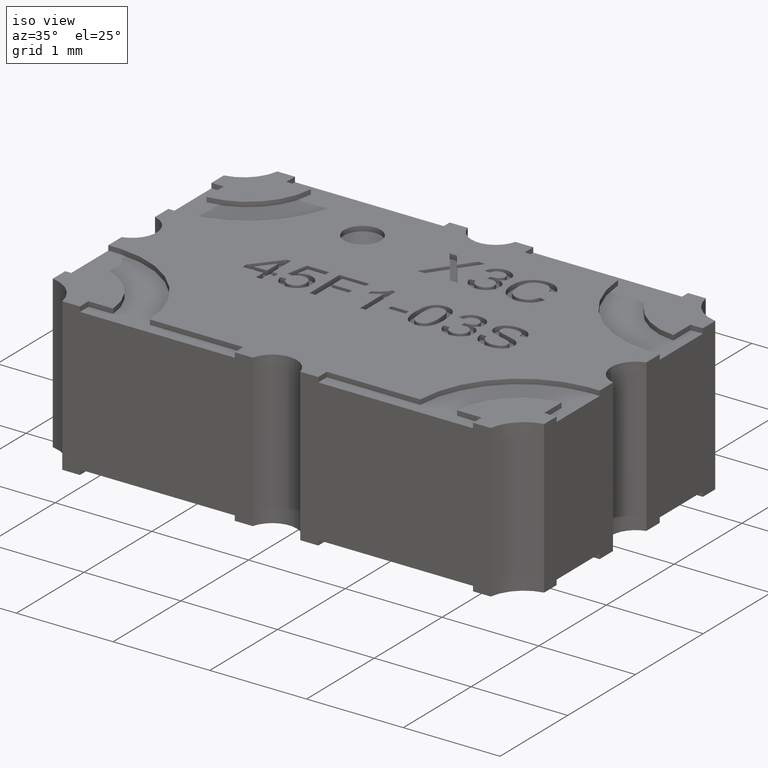
[diagram: clean part render]
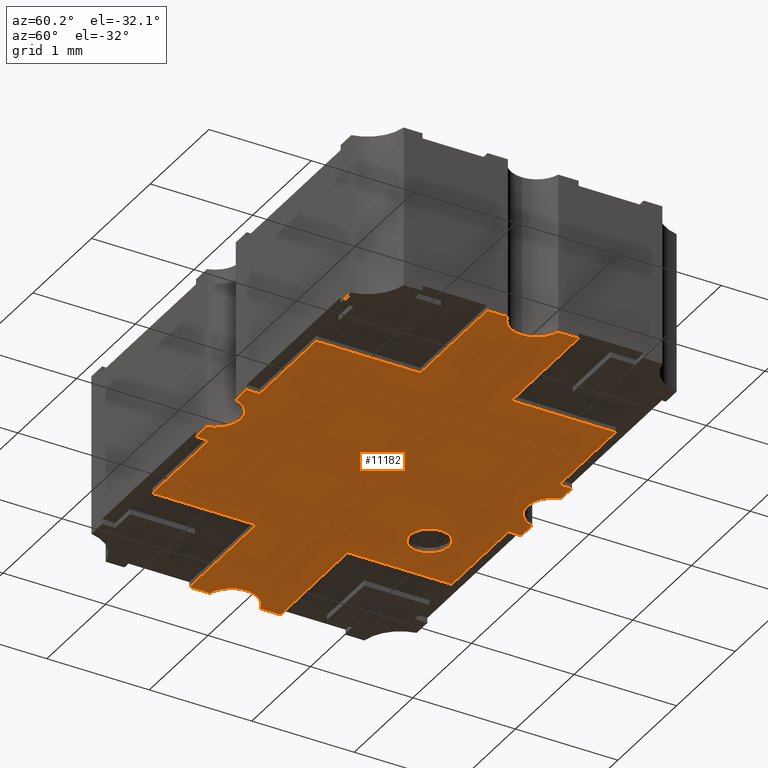
[diagram: tour spotlight — one face highlighted and labeled with its STEP entity id]
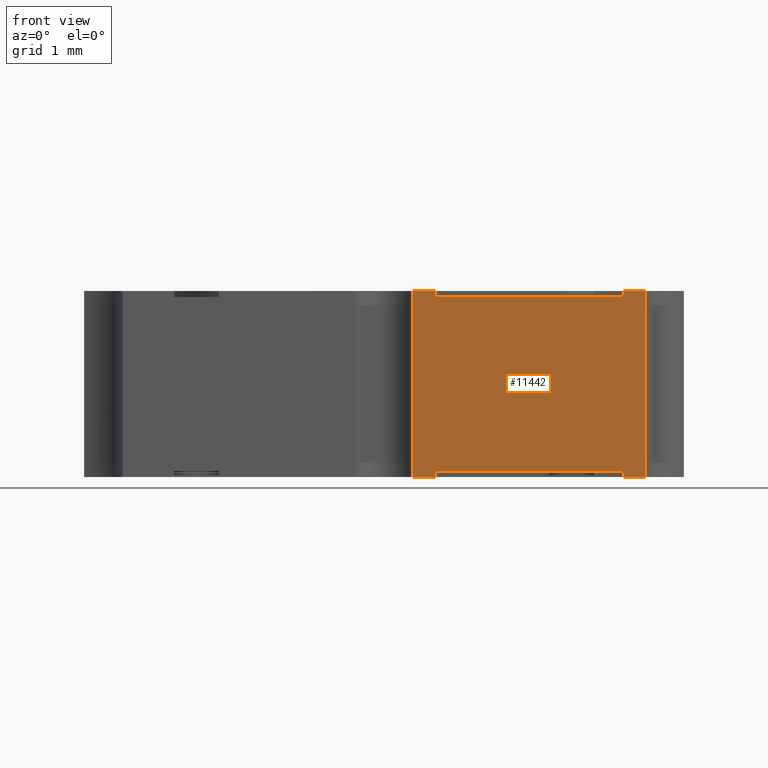
[diagram: tour spotlight — one face highlighted and labeled with its STEP entity id]
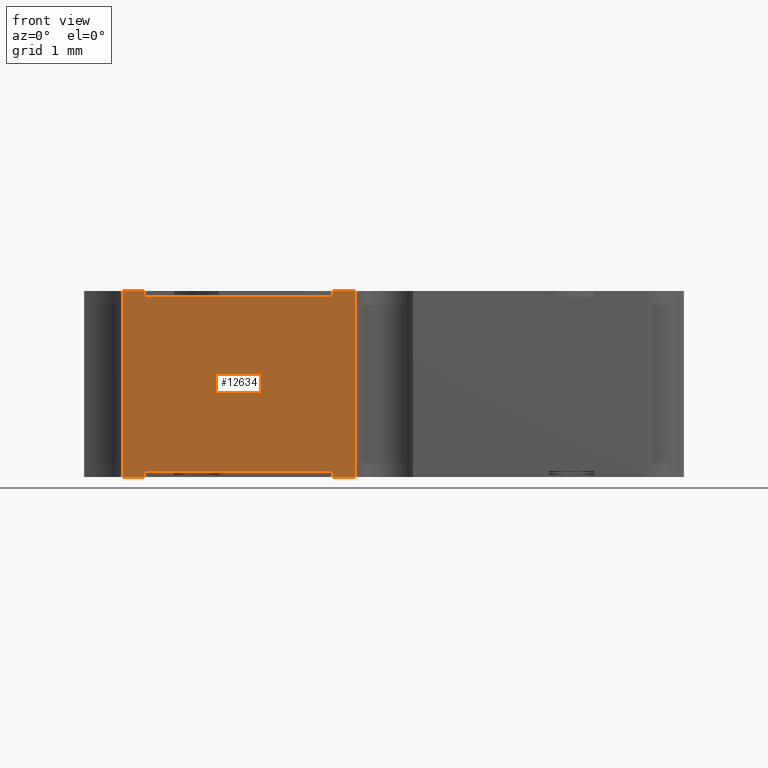
[diagram: tour spotlight — one face highlighted and labeled with its STEP entity id]
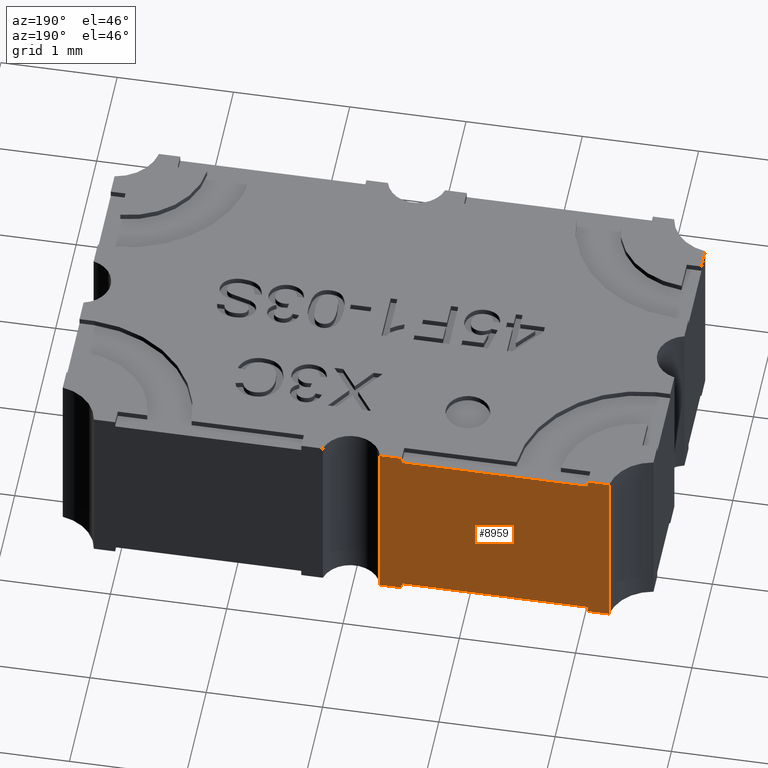
[diagram: tour spotlight — one face highlighted and labeled with its STEP entity id]
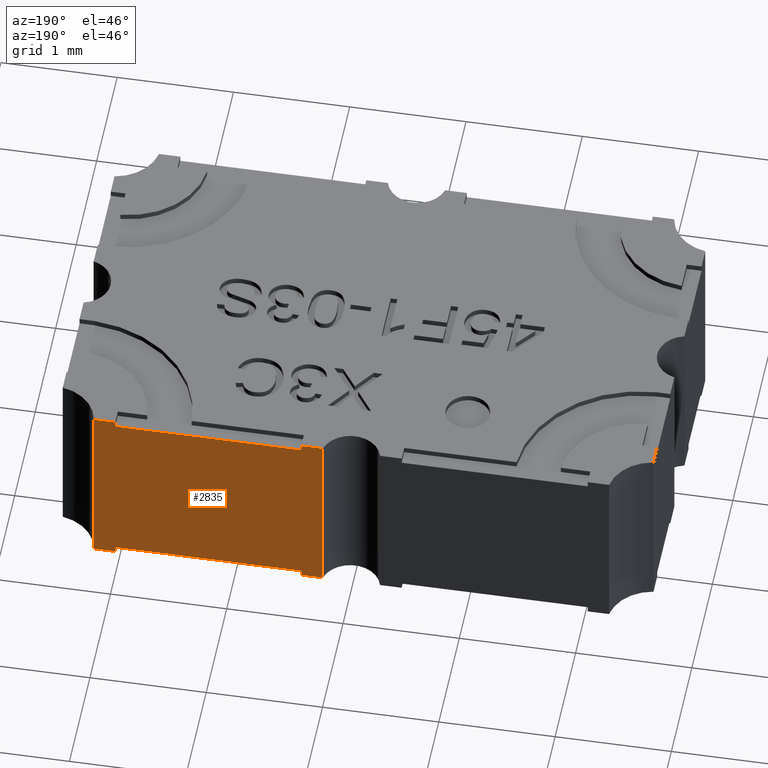
[diagram: tour spotlight — one face highlighted and labeled with its STEP entity id]
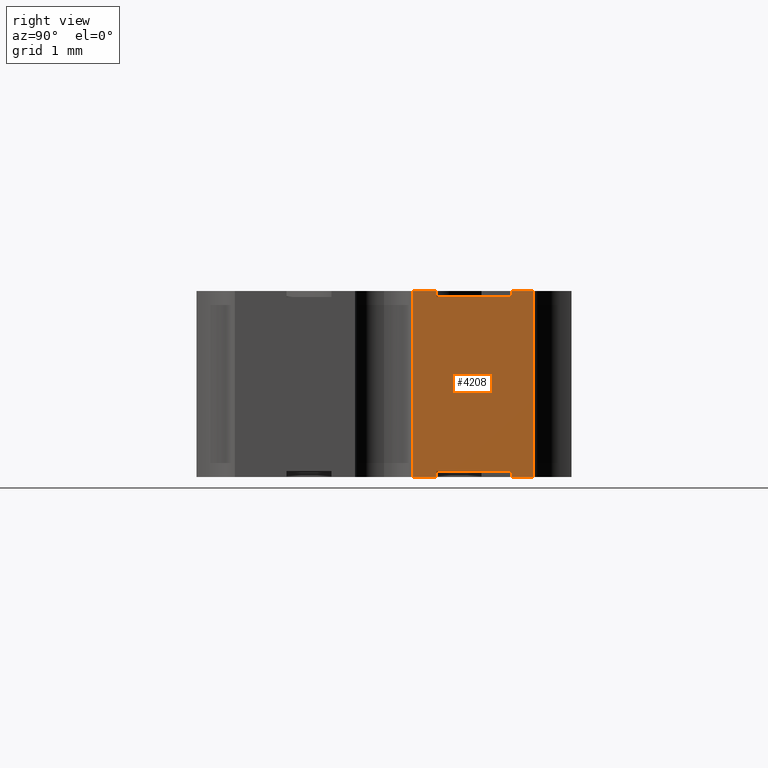
[diagram: tour spotlight — one face highlighted and labeled with its STEP entity id]
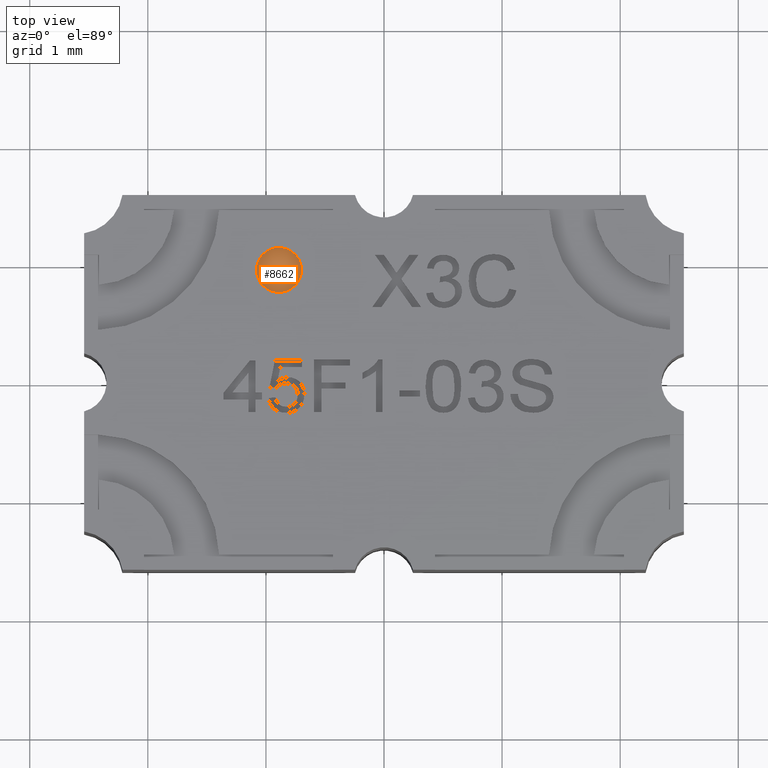
[diagram: tour spotlight — one face highlighted and labeled with its STEP entity id]
A machine part: a face-by-face anatomy tour. The part has 267 B-rep faces; the first image is the clean iso view, then the 7 largest visible faces are spotlighted one at a time (largest first), each with its STEP entity span.

Face 1 — auxiliary view, entity #11182. In plain terms, the highlighted planar face has unit normal (0, 0, 1).
Definition (entity closure, byte-faithful):
#34 = LINE ( 'NONE', #4030, #9963 ) ;
#44 = CARTESIAN_POINT ( 'NONE',  ( -0.01699999999997084399, -0.05750000000000450584, 0.000000000000000000 ) ) ;
#84 = AXIS2_PLACEMENT_3D ( 'NONE', #3704, #4808, #7570 ) ;
#94 = AXIS2_PLACEMENT_3D ( 'NONE', #7699, #5648, #10520 ) ;
#172 = VERTEX_POINT ( 'NONE', #3313 ) ;
#217 = AXIS2_PLACEMENT_3D ( 'NONE', #8984, #4342, #7047 ) ;
#372 = DIRECTION ( 'NONE',  ( 0.000000000000000000, 1.000000000000000000, 0.000000000000000000 ) ) ;
#386 = ORIENTED_EDGE ( 'NONE', *, *, #714, .T. ) ;
#416 = VECTOR ( 'NONE', #10494, 39.37007874015748143 ) ;
#435 = DIRECTION ( 'NONE',  ( 0.000000000000000000, -1.000000000000000000, 0.000000000000000000 ) ) ;
#446 = DIRECTION ( 'NONE',  ( -0.000000000000000000, -1.000000000000000000, -0.000000000000000000 ) ) ;
#502 = VECTOR ( 'NONE', #6310, 39.37007874015748143 ) ;
#519 = DIRECTION ( 'NONE',  ( -1.000000000000000000, 2.246585521108195157E-16, 0.000000000000000000 ) ) ;
#531 = ORIENTED_EDGE ( 'NONE', *, *, #11007, .T. ) ;
#551 = CARTESIAN_POINT ( 'NONE',  ( -0.01699999999997084399, 0.06250000000006371292, 0.000000000000000000 ) ) ;
#698 = LINE ( 'NONE', #4619, #12306 ) ;
#714 = EDGE_CURVE ( 'NONE', #10146, #1667, #3614, .T. ) ;
#824 = ORIENTED_EDGE ( 'NONE', *, *, #4432, .F. ) ;
#923 = CARTESIAN_POINT ( 'NONE',  ( -0.05500000000003860134, 0.05750000000007053635, 0.000000000000000000 ) ) ;
#951 = EDGE_CURVE ( 'NONE', #5000, #8416, #2321, .T. ) ;
#969 = ORIENTED_EDGE ( 'NONE', *, *, #1070, .T. ) ;
#1052 = CIRCLE ( 'NONE', #217, 0.007500000000000001457 ) ;
#1070 = EDGE_CURVE ( 'NONE', #5456, #11655, #698, .T. ) ;
#1113 = LINE ( 'NONE', #923, #7873 ) ;
#1159 = ORIENTED_EDGE ( 'NONE', *, *, #9877, .F. ) ;
#1169 = DIRECTION ( 'NONE',  ( 1.000000000000000000, 0.000000000000000000, 0.000000000000000000 ) ) ;
#1338 = CIRCLE ( 'NONE', #11609, 0.009999999999999995004 ) ;
#1360 = CARTESIAN_POINT ( 'NONE',  ( 0.05499999999997504108, 0.05750000000000460298, 0.000000000000000000 ) ) ;
#1413 = EDGE_CURVE ( 'NONE', #1579, #7974, #1918, .T. ) ;
#1438 = ORIENTED_EDGE ( 'NONE', *, *, #9214, .F. ) ;
#1454 = AXIS2_PLACEMENT_3D ( 'NONE', #6163, #6295, #5199 ) ;
#1464 = DIRECTION ( 'NONE',  ( 1.000000000000000000, 0.000000000000000000, 0.000000000000000000 ) ) ;
#1481 = ORIENTED_EDGE ( 'NONE', *, *, #8441, .T. ) ;
#1579 = VERTEX_POINT ( 'NONE', #12012 ) ;
#1600 = CARTESIAN_POINT ( 'NONE',  ( 0.05499999999997504108, 0.01749999999999832245, 0.000000000000000000 ) ) ;
#1602 = CARTESIAN_POINT ( 'NONE',  ( 0.05499999999997504108, -0.01749999999999826694, 0.000000000000000000 ) ) ;
#1667 = VERTEX_POINT ( 'NONE', #551 ) ;
#1732 = VERTEX_POINT ( 'NONE', #10785 ) ;
#1733 = DIRECTION ( 'NONE',  ( 0.000000000000000000, -1.000000000000000000, 0.000000000000000000 ) ) ;
#1820 = CARTESIAN_POINT ( 'NONE',  ( -0.08720294145923923601, 0.06249999999999771710, 0.000000000000000000 ) ) ;
#1918 = LINE ( 'NONE', #12598, #9918 ) ;
#1986 = ORIENTED_EDGE ( 'NONE', *, *, #3133, .F. ) ;
#2080 = LINE ( 'NONE', #7097, #6725 ) ;
#2102 = DIRECTION ( 'NONE',  ( -1.000000000000000000, 0.000000000000000000, 0.000000000000000000 ) ) ;
#2108 = ORIENTED_EDGE ( 'NONE', *, *, #951, .F. ) ;
#2204 = VECTOR ( 'NONE', #11058, 39.37007874015748143 ) ;
#2311 = CARTESIAN_POINT ( 'NONE',  ( -0.009682458365489837737, -0.06249999999999771710, 0.000000000000000000 ) ) ;
#2321 = LINE ( 'NONE', #11003, #3895 ) ;
#2360 = VECTOR ( 'NONE', #372, 39.37007874015748143 ) ;
#2456 = ORIENTED_EDGE ( 'NONE', *, *, #10420, .T. ) ;
#2489 = CARTESIAN_POINT ( 'NONE',  ( -0.09999999999999176215, -0.009682458365518535268, 0.000000000000000000 ) ) ;
#2565 = CARTESIAN_POINT ( 'NONE',  ( 0.05499999999997504108, 0.01749999999999832245, 0.000000000000000000 ) ) ;
#2617 = VECTOR ( 'NONE', #519, 39.37007874015748143 ) ;
#2646 = VERTEX_POINT ( 'NONE', #11545 ) ;
#2653 = CARTESIAN_POINT ( 'NONE',  ( -0.01699999999997084399, 0.05750000000007053635, 0.000000000000000000 ) ) ;
#2750 = DIRECTION ( 'NONE',  ( -1.000000000000000000, 0.000000000000000000, 0.000000000000000000 ) ) ;
#2774 = VECTOR ( 'NONE', #2811, 39.37007874015748143 ) ;
#2790 = EDGE_CURVE ( 'NONE', #9244, #7974, #2080, .T. ) ;
#2811 = DIRECTION ( 'NONE',  ( 0.000000000000000000, 1.000000000000000000, 0.000000000000000000 ) ) ;
#2969 = CARTESIAN_POINT ( 'NONE',  ( 0.09999999999999228950, 0.01749999999999832245, 0.000000000000000000 ) ) ;
#3032 = CIRCLE ( 'NONE', #12479, 0.009999999999999995004 ) ;
#3035 = CARTESIAN_POINT ( 'NONE',  ( -0.02750000000003541625, 0.03750000000000142109, 0.000000000000000000 ) ) ;
#3133 = EDGE_CURVE ( 'NONE', #5952, #9900, #10085, .T. ) ;
#3243 = ORIENTED_EDGE ( 'NONE', *, *, #9330, .T. ) ;
#3260 = CARTESIAN_POINT ( 'NONE',  ( -0.09999999999999176215, -0.04970294145924517709, 0.000000000000000000 ) ) ;
#3267 = ORIENTED_EDGE ( 'NONE', *, *, #11543, .F. ) ;
#3288 = EDGE_CURVE ( 'NONE', #8941, #9769, #9568, .T. ) ;
#3313 = CARTESIAN_POINT ( 'NONE',  ( -0.09999999999999178990, 0.009682458365518537002, 0.000000000000000000 ) ) ;
#3373 = CARTESIAN_POINT ( 'NONE',  ( -0.09999999999999190092, 0.01750000000006426970, 0.000000000000000000 ) ) ;
#3465 = ORIENTED_EDGE ( 'NONE', *, *, #5338, .T. ) ;
#3614 = LINE ( 'NONE', #2653, #416 ) ;
#3655 = VERTEX_POINT ( 'NONE', #9868 ) ;
#3704 = CARTESIAN_POINT ( 'NONE',  ( 2.868440393347476636E-14, 0.06499999999999771239, 0.000000000000000000 ) ) ;
#3708 = CARTESIAN_POINT ( 'NONE',  ( -0.05500000000003860134, -0.01749999999999825306, 0.000000000000000000 ) ) ;
#3777 = VERTEX_POINT ( 'NONE', #7112 ) ;
#3857 = CARTESIAN_POINT ( 'NONE',  ( -0.01699999999997084399, -0.06249999999999768241, 0.000000000000000000 ) ) ;
#3895 = VECTOR ( 'NONE', #6188, 39.37007874015748143 ) ;
#4030 = CARTESIAN_POINT ( 'NONE',  ( -0.05500000000003860134, -0.05750000000000450584, 0.000000000000000000 ) ) ;
#4065 = EDGE_CURVE ( 'NONE', #2646, #7910, #9673, .T. ) ;
#4106 = EDGE_CURVE ( 'NONE', #3655, #7837, #6117, .T. ) ;
#4125 = VECTOR ( 'NONE', #6232, 39.37007874015748143 ) ;
#4342 = DIRECTION ( 'NONE',  ( 0.000000000000000000, 0.000000000000000000, 1.000000000000000000 ) ) ;
#4354 = CARTESIAN_POINT ( 'NONE',  ( 0.009682458365547208512, 0.06249999999999771710, 0.000000000000000000 ) ) ;
#4356 = CARTESIAN_POINT ( 'NONE',  ( 0.01700000000002097056, -0.05750000000000450584, 0.000000000000000000 ) ) ;
#4364 = LINE ( 'NONE', #2311, #2204 ) ;
#4366 = EDGE_CURVE ( 'NONE', #11562, #1579, #12544, .T. ) ;
#4376 = CARTESIAN_POINT ( 'NONE',  ( 0.01700000000002097056, -0.06249999999999767547, 0.000000000000000000 ) ) ;
#4388 = EDGE_CURVE ( 'NONE', #12087, #3777, #9957, .T. ) ;
#4432 = EDGE_CURVE ( 'NONE', #4559, #9769, #10922, .T. ) ;
#4447 = ORIENTED_EDGE ( 'NONE', *, *, #2790, .T. ) ;
#4559 = VERTEX_POINT ( 'NONE', #2489 ) ;
#4587 = VECTOR ( 'NONE', #10559, 39.37007874015748143 ) ;
#4599 = VECTOR ( 'NONE', #8452, 39.37007874015748143 ) ;
#4619 = CARTESIAN_POINT ( 'NONE',  ( -0.09999999999999190092, 0.01750000000006426970, 0.000000000000000000 ) ) ;
#4652 = VECTOR ( 'NONE', #8036, 39.37007874015748143 ) ;
#4808 = DIRECTION ( 'NONE',  ( -0.000000000000000000, -0.000000000000000000, -1.000000000000000000 ) ) ;
#4873 = ORIENTED_EDGE ( 'NONE', *, *, #8564, .F. ) ;
#5000 = VERTEX_POINT ( 'NONE', #8821 ) ;
#5199 = DIRECTION ( 'NONE',  ( 1.000000000000000000, 0.000000000000000000, 0.000000000000000000 ) ) ;
#5202 = LINE ( 'NONE', #12206, #6182 ) ;
#5209 = CARTESIAN_POINT ( 'NONE',  ( -0.009682458365489837737, -0.06249999999999771710, 0.000000000000000000 ) ) ;
#5338 = EDGE_CURVE ( 'NONE', #6712, #1732, #1052, .T. ) ;
#5410 = CARTESIAN_POINT ( 'NONE',  ( 0.05499999999997504108, -0.05750000000000451972, 0.000000000000000000 ) ) ;
#5434 = VECTOR ( 'NONE', #446, 39.37007874015748143 ) ;
#5456 = VERTEX_POINT ( 'NONE', #3373 ) ;
#5469 = ORIENTED_EDGE ( 'NONE', *, *, #8962, .F. ) ;
#5648 = DIRECTION ( 'NONE',  ( 0.000000000000000000, 0.000000000000000000, 1.000000000000000000 ) ) ;
#5722 = EDGE_CURVE ( 'NONE', #12515, #7649, #6324, .T. ) ;
#5753 = CARTESIAN_POINT ( 'NONE',  ( 0.05499999999997504108, -0.05750000000000451972, 0.000000000000000000 ) ) ;
#5859 = VERTEX_POINT ( 'NONE', #12556 ) ;
#5876 = DIRECTION ( 'NONE',  ( 1.000000000000000000, 0.000000000000000000, -0.000000000000000000 ) ) ;
#5892 = EDGE_CURVE ( 'NONE', #5000, #12087, #5202, .T. ) ;
#5939 = DIRECTION ( 'NONE',  ( 0.000000000000000000, -1.000000000000000000, 0.000000000000000000 ) ) ;
#5952 = VERTEX_POINT ( 'NONE', #8100 ) ;
#6052 = CARTESIAN_POINT ( 'NONE',  ( 0.1024999999999923056, -1.280553747030123384E-17, 0.000000000000000000 ) ) ;
#6079 = DIRECTION ( 'NONE',  ( 1.000000000000000000, 0.000000000000000000, 0.000000000000000000 ) ) ;
#6117 = LINE ( 'NONE', #1602, #8849 ) ;
#6163 = CARTESIAN_POINT ( 'NONE',  ( 2.868653818971981125E-14, -0.06499999999999772626, 0.000000000000000000 ) ) ;
#6170 = VERTEX_POINT ( 'NONE', #11228 ) ;
#6182 = VECTOR ( 'NONE', #435, 39.37007874015748143 ) ;
#6188 = DIRECTION ( 'NONE',  ( -1.000000000000000000, -0.000000000000000000, -0.000000000000000000 ) ) ;
#6209 = CARTESIAN_POINT ( 'NONE',  ( -0.1024999999999917921, -4.408500743263292825E-18, 0.000000000000000000 ) ) ;
#6232 = DIRECTION ( 'NONE',  ( 1.000000000000000000, 0.000000000000000000, 0.000000000000000000 ) ) ;
#6295 = DIRECTION ( 'NONE',  ( -0.000000000000000000, -0.000000000000000000, -1.000000000000000000 ) ) ;
#6310 = DIRECTION ( 'NONE',  ( 0.000000000000000000, -1.000000000000000000, 0.000000000000000000 ) ) ;
#6324 = LINE ( 'NONE', #8252, #10484 ) ;
#6414 = LINE ( 'NONE', #11111, #2360 ) ;
#6454 = CARTESIAN_POINT ( 'NONE',  ( 0.09999999999999228950, 0.04970294145924517015, 0.000000000000000000 ) ) ;
#6610 = VERTEX_POINT ( 'NONE', #2969 ) ;
#6644 = LINE ( 'NONE', #1820, #4587 ) ;
#6712 = VERTEX_POINT ( 'NONE', #3035 ) ;
#6725 = VECTOR ( 'NONE', #5939, 39.37007874015748143 ) ;
#6738 = CARTESIAN_POINT ( 'NONE',  ( -0.01699999999997084399, -0.06249999999999768241, 0.000000000000000000 ) ) ;
#6929 = LINE ( 'NONE', #10797, #11154 ) ;
#6948 = VERTEX_POINT ( 'NONE', #3857 ) ;
#7001 = DIRECTION ( 'NONE',  ( -0.000000000000000000, -1.000000000000000000, -0.000000000000000000 ) ) ;
#7047 = DIRECTION ( 'NONE',  ( 1.000000000000000000, 0.000000000000000000, 0.000000000000000000 ) ) ;
#7097 = CARTESIAN_POINT ( 'NONE',  ( 0.01700000000002097056, -0.05750000000000450584, 0.000000000000000000 ) ) ;
#7105 = DIRECTION ( 'NONE',  ( -0.000000000000000000, -0.000000000000000000, -1.000000000000000000 ) ) ;
#7112 = CARTESIAN_POINT ( 'NONE',  ( 0.05499999999997504108, 0.05750000000000460298, 0.000000000000000000 ) ) ;
#7268 = CARTESIAN_POINT ( 'NONE',  ( -0.05500000000003860134, -0.01749999999999825306, 0.000000000000000000 ) ) ;
#7320 = ORIENTED_EDGE ( 'NONE', *, *, #11388, .T. ) ;
#7330 = CARTESIAN_POINT ( 'NONE',  ( -0.09999999999999178990, 0.009682458365518537002, 0.000000000000000000 ) ) ;
#7366 = DIRECTION ( 'NONE',  ( 0.000000000000000000, 0.000000000000000000, 1.000000000000000000 ) ) ;
#7426 = FACE_BOUND ( 'NONE', #12303, .T. ) ;
#7447 = LINE ( 'NONE', #2565, #12272 ) ;
#7476 = LINE ( 'NONE', #6454, #4599 ) ;
#7570 = DIRECTION ( 'NONE',  ( 1.000000000000000000, 0.000000000000000000, 0.000000000000000000 ) ) ;
#7649 = VERTEX_POINT ( 'NONE', #12363 ) ;
#7666 = EDGE_CURVE ( 'NONE', #7910, #6610, #7476, .T. ) ;
#7699 = CARTESIAN_POINT ( 'NONE',  ( -0.03500000000003541945, 0.03750000000000142109, 0.000000000000000000 ) ) ;
#7835 = DIRECTION ( 'NONE',  ( 1.000000000000000000, -0.000000000000000000, -0.000000000000000000 ) ) ;
#7837 = VERTEX_POINT ( 'NONE', #5753 ) ;
#7842 = EDGE_LOOP ( 'NONE', ( #969, #1481, #531, #386, #1159, #4873, #2108, #10838, #11989, #9514, #9751, #12695, #9888, #1438, #1986, #2456, #7880, #7320, #4447, #12238, #7971, #3267, #3243, #10214, #12723, #11298, #824, #11868, #5469 ) ) ;
#7873 = VECTOR ( 'NONE', #10760, 39.37007874015748143 ) ;
#7880 = ORIENTED_EDGE ( 'NONE', *, *, #4106, .T. ) ;
#7910 = VERTEX_POINT ( 'NONE', #12037 ) ;
#7971 = ORIENTED_EDGE ( 'NONE', *, *, #4366, .F. ) ;
#7974 = VERTEX_POINT ( 'NONE', #4376 ) ;
#8036 = DIRECTION ( 'NONE',  ( -0.000000000000000000, 1.000000000000000000, -0.000000000000000000 ) ) ;
#8066 = CARTESIAN_POINT ( 'NONE',  ( -0.09999999999999167888, -0.01749999999999825306, 0.000000000000000000 ) ) ;
#8100 = CARTESIAN_POINT ( 'NONE',  ( 0.09999999999999228950, -0.01749999999999826694, 0.000000000000000000 ) ) ;
#8252 = CARTESIAN_POINT ( 'NONE',  ( -0.01699999999997084399, -0.05750000000000450584, 0.000000000000000000 ) ) ;
#8288 = VERTEX_POINT ( 'NONE', #1600 ) ;
#8311 = LINE ( 'NONE', #5410, #2617 ) ;
#8325 = CIRCLE ( 'NONE', #94, 0.007500000000000001457 ) ;
#8416 = VERTEX_POINT ( 'NONE', #4354 ) ;
#8417 = CARTESIAN_POINT ( 'NONE',  ( -0.01699999999997084399, 0.05750000000007053635, 0.000000000000000000 ) ) ;
#8441 = EDGE_CURVE ( 'NONE', #11655, #5859, #6414, .T. ) ;
#8452 = DIRECTION ( 'NONE',  ( -0.000000000000000000, 1.000000000000000000, -0.000000000000000000 ) ) ;
#8564 = EDGE_CURVE ( 'NONE', #8416, #6170, #12212, .T. ) ;
#8768 = VECTOR ( 'NONE', #2750, 39.37007874015748143 ) ;
#8821 = CARTESIAN_POINT ( 'NONE',  ( 0.01700000000002097056, 0.06249999999999777955, 0.000000000000000000 ) ) ;
#8849 = VECTOR ( 'NONE', #1733, 39.37007874015748143 ) ;
#8900 = EDGE_CURVE ( 'NONE', #3777, #8288, #9390, .T. ) ;
#8941 = VERTEX_POINT ( 'NONE', #7268 ) ;
#8962 = EDGE_CURVE ( 'NONE', #5456, #172, #10161, .T. ) ;
#8984 = CARTESIAN_POINT ( 'NONE',  ( -0.03500000000003541945, 0.03750000000000142109, 0.000000000000000000 ) ) ;
#9214 = EDGE_CURVE ( 'NONE', #9900, #2646, #1338, .T. ) ;
#9217 = DIRECTION ( 'NONE',  ( -1.000000000000000000, 0.000000000000000000, 0.000000000000000000 ) ) ;
#9244 = VERTEX_POINT ( 'NONE', #4356 ) ;
#9319 = AXIS2_PLACEMENT_3D ( 'NONE', #12253, #7366, #5876 ) ;
#9323 = EDGE_CURVE ( 'NONE', #1732, #6712, #8325, .T. ) ;
#9330 = EDGE_CURVE ( 'NONE', #6948, #12515, #12455, .T. ) ;
#9390 = LINE ( 'NONE', #1360, #502 ) ;
#9407 = CARTESIAN_POINT ( 'NONE',  ( 0.09999999999999228950, -0.009682458365518550880, 0.000000000000000000 ) ) ;
#9434 = EDGE_CURVE ( 'NONE', #7649, #8941, #34, .T. ) ;
#9444 = CARTESIAN_POINT ( 'NONE',  ( -0.05500000000003860134, 0.01750000000006426970, 0.000000000000000000 ) ) ;
#9462 = VECTOR ( 'NONE', #7001, 39.37007874015748143 ) ;
#9506 = DIRECTION ( 'NONE',  ( 1.000000000000000000, 0.000000000000000000, 0.000000000000000000 ) ) ;
#9514 = ORIENTED_EDGE ( 'NONE', *, *, #8900, .T. ) ;
#9568 = LINE ( 'NONE', #3708, #8768 ) ;
#9673 = CIRCLE ( 'NONE', #11104, 0.009999999999999995004 ) ;
#9751 = ORIENTED_EDGE ( 'NONE', *, *, #12443, .T. ) ;
#9758 = DIRECTION ( 'NONE',  ( 0.000000000000000000, 1.000000000000000000, 0.000000000000000000 ) ) ;
#9769 = VERTEX_POINT ( 'NONE', #8066 ) ;
#9811 = CARTESIAN_POINT ( 'NONE',  ( 0.01700000000002097056, 0.05750000000000460298, 0.000000000000000000 ) ) ;
#9868 = CARTESIAN_POINT ( 'NONE',  ( 0.05499999999997504108, -0.01749999999999826694, 0.000000000000000000 ) ) ;
#9877 = EDGE_CURVE ( 'NONE', #6170, #1667, #6644, .T. ) ;
#9888 = ORIENTED_EDGE ( 'NONE', *, *, #4065, .F. ) ;
#9900 = VERTEX_POINT ( 'NONE', #9407 ) ;
#9918 = VECTOR ( 'NONE', #7835, 39.37007874015748143 ) ;
#9957 = LINE ( 'NONE', #11887, #4125 ) ;
#9963 = VECTOR ( 'NONE', #9758, 39.37007874015748143 ) ;
#9974 = DIRECTION ( 'NONE',  ( -0.000000000000000000, -0.000000000000000000, -1.000000000000000000 ) ) ;
#10043 = DIRECTION ( 'NONE',  ( 1.000000000000000000, 0.000000000000000000, 0.000000000000000000 ) ) ;
#10085 = LINE ( 'NONE', #12084, #4652 ) ;
#10146 = VERTEX_POINT ( 'NONE', #8417 ) ;
#10161 = LINE ( 'NONE', #7330, #5434 ) ;
#10214 = ORIENTED_EDGE ( 'NONE', *, *, #5722, .T. ) ;
#10270 = CARTESIAN_POINT ( 'NONE',  ( 0.1024999999999923056, -1.280553747030123384E-17, 0.000000000000000000 ) ) ;
#10397 = DIRECTION ( 'NONE',  ( -0.000000000000000000, -0.000000000000000000, -1.000000000000000000 ) ) ;
#10420 = EDGE_CURVE ( 'NONE', #5952, #3655, #6929, .T. ) ;
#10484 = VECTOR ( 'NONE', #9217, 39.37007874015748143 ) ;
#10494 = DIRECTION ( 'NONE',  ( 0.000000000000000000, 1.000000000000000000, 0.000000000000000000 ) ) ;
#10520 = DIRECTION ( 'NONE',  ( 1.000000000000000000, 0.000000000000000000, 0.000000000000000000 ) ) ;
#10559 = DIRECTION ( 'NONE',  ( -1.000000000000000000, -0.000000000000000000, -0.000000000000000000 ) ) ;
#10760 = DIRECTION ( 'NONE',  ( 1.000000000000000000, 0.000000000000000000, 0.000000000000000000 ) ) ;
#10785 = CARTESIAN_POINT ( 'NONE',  ( -0.04250000000003541917, 0.03750000000000142109, 0.000000000000000000 ) ) ;
#10797 = CARTESIAN_POINT ( 'NONE',  ( 0.09999999999999228950, -0.01749999999999826694, 0.000000000000000000 ) ) ;
#10838 = ORIENTED_EDGE ( 'NONE', *, *, #5892, .T. ) ;
#10922 = LINE ( 'NONE', #3260, #9462 ) ;
#11003 = CARTESIAN_POINT ( 'NONE',  ( 0.009682458365547208512, 0.06249999999999771710, 0.000000000000000000 ) ) ;
#11007 = EDGE_CURVE ( 'NONE', #5859, #10146, #1113, .T. ) ;
#11058 = DIRECTION ( 'NONE',  ( 1.000000000000000000, 1.101260549405577256E-16, -0.000000000000000000 ) ) ;
#11104 = AXIS2_PLACEMENT_3D ( 'NONE', #6052, #9974, #1169 ) ;
#11111 = CARTESIAN_POINT ( 'NONE',  ( -0.05500000000003860134, 0.01750000000006426970, 0.000000000000000000 ) ) ;
#11154 = VECTOR ( 'NONE', #2102, 39.37007874015748143 ) ;
#11182 = ADVANCED_FACE ( 'NONE', ( #7426, #12444 ), #12314, .F. ) ;
#11228 = CARTESIAN_POINT ( 'NONE',  ( -0.009682458365489842941, 0.06249999999999771710, 0.000000000000000000 ) ) ;
#11298 = ORIENTED_EDGE ( 'NONE', *, *, #3288, .T. ) ;
#11388 = EDGE_CURVE ( 'NONE', #7837, #9244, #8311, .T. ) ;
#11543 = EDGE_CURVE ( 'NONE', #6948, #11562, #4364, .T. ) ;
#11545 = CARTESIAN_POINT ( 'NONE',  ( 0.09249999999999229672, -1.280553747030123384E-17, 0.000000000000000000 ) ) ;
#11562 = VERTEX_POINT ( 'NONE', #5209 ) ;
#11609 = AXIS2_PLACEMENT_3D ( 'NONE', #10270, #10397, #1464 ) ;
#11655 = VERTEX_POINT ( 'NONE', #9444 ) ;
#11868 = ORIENTED_EDGE ( 'NONE', *, *, #12104, .F. ) ;
#11887 = CARTESIAN_POINT ( 'NONE',  ( 0.01700000000002097056, 0.05750000000000460298, 0.000000000000000000 ) ) ;
#11989 = ORIENTED_EDGE ( 'NONE', *, *, #4388, .T. ) ;
#12012 = CARTESIAN_POINT ( 'NONE',  ( 0.009682458365547208512, -0.06249999999999771710, 0.000000000000000000 ) ) ;
#12037 = CARTESIAN_POINT ( 'NONE',  ( 0.09999999999999228950, 0.009682458365518524859, 0.000000000000000000 ) ) ;
#12084 = CARTESIAN_POINT ( 'NONE',  ( 0.09999999999999228950, -0.009682458365518550880, 0.000000000000000000 ) ) ;
#12087 = VERTEX_POINT ( 'NONE', #9811 ) ;
#12104 = EDGE_CURVE ( 'NONE', #172, #4559, #3032, .T. ) ;
#12206 = CARTESIAN_POINT ( 'NONE',  ( 0.01700000000002097056, 0.06249999999999777955, 0.000000000000000000 ) ) ;
#12212 = CIRCLE ( 'NONE', #84, 0.009999999999999982861 ) ;
#12238 = ORIENTED_EDGE ( 'NONE', *, *, #1413, .F. ) ;
#12253 = CARTESIAN_POINT ( 'NONE',  ( -0.1024999999999917921, 0.06499999999999772626, 0.000000000000000000 ) ) ;
#12272 = VECTOR ( 'NONE', #10043, 39.37007874015748143 ) ;
#12303 = EDGE_LOOP ( 'NONE', ( #12550, #3465 ) ) ;
#12306 = VECTOR ( 'NONE', #9506, 39.37007874015748143 ) ;
#12314 = PLANE ( 'NONE',  #9319 ) ;
#12363 = CARTESIAN_POINT ( 'NONE',  ( -0.05500000000003860134, -0.05750000000000450584, 0.000000000000000000 ) ) ;
#12443 = EDGE_CURVE ( 'NONE', #8288, #6610, #7447, .T. ) ;
#12444 = FACE_OUTER_BOUND ( 'NONE', #7842, .T. ) ;
#12455 = LINE ( 'NONE', #6738, #2774 ) ;
#12479 = AXIS2_PLACEMENT_3D ( 'NONE', #6209, #7105, #6079 ) ;
#12515 = VERTEX_POINT ( 'NONE', #44 ) ;
#12544 = CIRCLE ( 'NONE', #1454, 0.009999999999999982861 ) ;
#12550 = ORIENTED_EDGE ( 'NONE', *, *, #9323, .T. ) ;
#12556 = CARTESIAN_POINT ( 'NONE',  ( -0.05500000000003860134, 0.05750000000007053635, 0.000000000000000000 ) ) ;
#12598 = CARTESIAN_POINT ( 'NONE',  ( 0.08720294145923973561, -0.06249999999999771710, 0.000000000000000000 ) ) ;
#12695 = ORIENTED_EDGE ( 'NONE', *, *, #7666, .F. ) ;
#12723 = ORIENTED_EDGE ( 'NONE', *, *, #9434, .T. ) ;

Face 2 — front view, entity #11442. In plain terms, the highlighted planar face has unit normal (0, 1, -0).
Definition (entity closure, byte-faithful):
#71 = CARTESIAN_POINT ( 'NONE',  ( 0.009682458365547210247, -0.06249999999999773098, 0.06199999999999999262 ) ) ;
#111 = ORIENTED_EDGE ( 'NONE', *, *, #2219, .F. ) ;
#208 = DIRECTION ( 'NONE',  ( -0.000000000000000000, -0.000000000000000000, 1.000000000000000000 ) ) ;
#576 = ORIENTED_EDGE ( 'NONE', *, *, #11366, .F. ) ;
#582 = LINE ( 'NONE', #5348, #7960 ) ;
#650 = CARTESIAN_POINT ( 'NONE',  ( 0.08720294145923973561, -0.06249999999999771710, 0.002000000000000000042 ) ) ;
#770 = AXIS2_PLACEMENT_3D ( 'NONE', #650, #7783, #8503 ) ;
#800 = VERTEX_POINT ( 'NONE', #4648 ) ;
#891 = ORIENTED_EDGE ( 'NONE', *, *, #1586, .T. ) ;
#925 = ORIENTED_EDGE ( 'NONE', *, *, #1829, .T. ) ;
#927 = CARTESIAN_POINT ( 'NONE',  ( 0.08000000000006599055, -0.06249999999999768241, 0.000000000000000000 ) ) ;
#989 = VECTOR ( 'NONE', #2105, 39.37007874015748143 ) ;
#1359 = LINE ( 'NONE', #7017, #8031 ) ;
#1395 = LINE ( 'NONE', #6468, #7046 ) ;
#1413 = EDGE_CURVE ( 'NONE', #1579, #7974, #1918, .T. ) ;
#1579 = VERTEX_POINT ( 'NONE', #12012 ) ;
#1586 = EDGE_CURVE ( 'NONE', #5843, #11316, #5382, .T. ) ;
#1829 = EDGE_CURVE ( 'NONE', #11173, #800, #8981, .T. ) ;
#1918 = LINE ( 'NONE', #12598, #9918 ) ;
#2050 = VERTEX_POINT ( 'NONE', #8126 ) ;
#2105 = DIRECTION ( 'NONE',  ( 1.000000000000000000, -1.355083330189638428E-16, -0.000000000000000000 ) ) ;
#2219 = EDGE_CURVE ( 'NONE', #11152, #800, #4639, .T. ) ;
#2359 = VECTOR ( 'NONE', #208, 39.37007874015748143 ) ;
#2473 = VECTOR ( 'NONE', #4998, 39.37007874015748143 ) ;
#2979 = LINE ( 'NONE', #3879, #2359 ) ;
#3002 = LINE ( 'NONE', #6864, #2473 ) ;
#3078 = CARTESIAN_POINT ( 'NONE',  ( 0.08000000000006599055, -0.06249999999999768241, 0.002000000000000000042 ) ) ;
#3879 = CARTESIAN_POINT ( 'NONE',  ( 0.01700000000002096709, -0.06249999999999768241, 0.05999999999999999084 ) ) ;
#4053 = EDGE_CURVE ( 'NONE', #2050, #7572, #1359, .T. ) ;
#4063 = DIRECTION ( 'NONE',  ( -1.000000000000000000, 0.000000000000000000, 0.000000000000000000 ) ) ;
#4179 = ORIENTED_EDGE ( 'NONE', *, *, #10545, .F. ) ;
#4348 = CARTESIAN_POINT ( 'NONE',  ( 0.08000000000006597667, -0.06249999999999769629, 0.06199999999999999262 ) ) ;
#4352 = DIRECTION ( 'NONE',  ( -1.000000000000000000, 0.000000000000000000, 0.000000000000000000 ) ) ;
#4376 = CARTESIAN_POINT ( 'NONE',  ( 0.01700000000002097056, -0.06249999999999767547, 0.000000000000000000 ) ) ;
#4562 = VECTOR ( 'NONE', #12483, 39.37007874015748143 ) ;
#4624 = LINE ( 'NONE', #12011, #989 ) ;
#4639 = LINE ( 'NONE', #10485, #4562 ) ;
#4648 = CARTESIAN_POINT ( 'NONE',  ( 0.08720294145923973561, -0.06249999999999771710, 0.000000000000000000 ) ) ;
#4722 = EDGE_CURVE ( 'NONE', #7572, #5843, #2979, .T. ) ;
#4998 = DIRECTION ( 'NONE',  ( -0.000000000000000000, -0.000000000000000000, -1.000000000000000000 ) ) ;
#5323 = CARTESIAN_POINT ( 'NONE',  ( 0.1024999999999923056, -0.06249999999999773098, 0.06199999999999999262 ) ) ;
#5348 = CARTESIAN_POINT ( 'NONE',  ( 0.01700000000002097056, -0.06249999999999767547, 0.002000000000000000042 ) ) ;
#5382 = LINE ( 'NONE', #5323, #9861 ) ;
#5674 = FACE_OUTER_BOUND ( 'NONE', #9658, .T. ) ;
#5682 = CARTESIAN_POINT ( 'NONE',  ( 0.01700000000002096709, -0.06249999999999768241, 0.06199999999999999262 ) ) ;
#5716 = VERTEX_POINT ( 'NONE', #9404 ) ;
#5831 = EDGE_CURVE ( 'NONE', #5716, #11173, #7004, .T. ) ;
#5843 = VERTEX_POINT ( 'NONE', #5682 ) ;
#6032 = EDGE_CURVE ( 'NONE', #11316, #1579, #3002, .T. ) ;
#6092 = CARTESIAN_POINT ( 'NONE',  ( 0.01700000000002097056, -0.06249999999999767547, 0.002000000000000000042 ) ) ;
#6468 = CARTESIAN_POINT ( 'NONE',  ( 0.08000000000006597667, -0.06249999999999769629, 0.05999999999999999084 ) ) ;
#6756 = EDGE_CURVE ( 'NONE', #11152, #10551, #11004, .T. ) ;
#6864 = CARTESIAN_POINT ( 'NONE',  ( 0.009682458365547208512, -0.06249999999999771710, 0.002000000000000000042 ) ) ;
#7004 = LINE ( 'NONE', #3078, #8027 ) ;
#7017 = CARTESIAN_POINT ( 'NONE',  ( 0.1024999999999923056, -0.06249999999999769629, 0.05999999999999999084 ) ) ;
#7046 = VECTOR ( 'NONE', #10387, 39.37007874015748143 ) ;
#7572 = VERTEX_POINT ( 'NONE', #8201 ) ;
#7783 = DIRECTION ( 'NONE',  ( 0.000000000000000000, 1.000000000000000000, -0.000000000000000000 ) ) ;
#7788 = ORIENTED_EDGE ( 'NONE', *, *, #4053, .T. ) ;
#7835 = DIRECTION ( 'NONE',  ( 1.000000000000000000, -0.000000000000000000, -0.000000000000000000 ) ) ;
#7960 = VECTOR ( 'NONE', #8435, 39.37007874015748143 ) ;
#7974 = VERTEX_POINT ( 'NONE', #4376 ) ;
#8027 = VECTOR ( 'NONE', #8035, 39.37007874015748143 ) ;
#8031 = VECTOR ( 'NONE', #10935, 39.37007874015748143 ) ;
#8035 = DIRECTION ( 'NONE',  ( 0.000000000000000000, 0.000000000000000000, -1.000000000000000000 ) ) ;
#8126 = CARTESIAN_POINT ( 'NONE',  ( 0.08000000000006597667, -0.06249999999999769629, 0.05999999999999999084 ) ) ;
#8201 = CARTESIAN_POINT ( 'NONE',  ( 0.01700000000002096709, -0.06249999999999768241, 0.05999999999999999084 ) ) ;
#8204 = CARTESIAN_POINT ( 'NONE',  ( 0.08720294145923973561, -0.06249999999999771710, 0.000000000000000000 ) ) ;
#8435 = DIRECTION ( 'NONE',  ( 0.000000000000000000, 0.000000000000000000, -1.000000000000000000 ) ) ;
#8503 = DIRECTION ( 'NONE',  ( 0.000000000000000000, 0.000000000000000000, 1.000000000000000000 ) ) ;
#8981 = LINE ( 'NONE', #8204, #10730 ) ;
#9083 = CARTESIAN_POINT ( 'NONE',  ( 0.1024999999999923056, -0.06249999999999773098, 0.06199999999999999262 ) ) ;
#9202 = ORIENTED_EDGE ( 'NONE', *, *, #5831, .T. ) ;
#9404 = CARTESIAN_POINT ( 'NONE',  ( 0.08000000000006599055, -0.06249999999999768241, 0.002000000000000000042 ) ) ;
#9658 = EDGE_LOOP ( 'NONE', ( #4179, #7788, #11076, #891, #10778, #10587, #576, #11141, #9202, #925, #111, #10351 ) ) ;
#9861 = VECTOR ( 'NONE', #4352, 39.37007874015748143 ) ;
#9918 = VECTOR ( 'NONE', #7835, 39.37007874015748143 ) ;
#10061 = DIRECTION ( 'NONE',  ( 1.000000000000000000, -0.000000000000000000, -0.000000000000000000 ) ) ;
#10351 = ORIENTED_EDGE ( 'NONE', *, *, #6756, .T. ) ;
#10387 = DIRECTION ( 'NONE',  ( -0.000000000000000000, -0.000000000000000000, 1.000000000000000000 ) ) ;
#10485 = CARTESIAN_POINT ( 'NONE',  ( 0.08720294145923973561, -0.06249999999999771710, 0.002000000000000000042 ) ) ;
#10545 = EDGE_CURVE ( 'NONE', #2050, #10551, #1395, .T. ) ;
#10551 = VERTEX_POINT ( 'NONE', #4348 ) ;
#10587 = ORIENTED_EDGE ( 'NONE', *, *, #1413, .T. ) ;
#10730 = VECTOR ( 'NONE', #10061, 39.37007874015748143 ) ;
#10777 = VECTOR ( 'NONE', #4063, 39.37007874015748143 ) ;
#10778 = ORIENTED_EDGE ( 'NONE', *, *, #6032, .T. ) ;
#10935 = DIRECTION ( 'NONE',  ( -1.000000000000000000, 1.355083330189638428E-16, 0.000000000000000000 ) ) ;
#11004 = LINE ( 'NONE', #9083, #10777 ) ;
#11076 = ORIENTED_EDGE ( 'NONE', *, *, #4722, .T. ) ;
#11133 = VERTEX_POINT ( 'NONE', #6092 ) ;
#11141 = ORIENTED_EDGE ( 'NONE', *, *, #12497, .T. ) ;
#11152 = VERTEX_POINT ( 'NONE', #12195 ) ;
#11173 = VERTEX_POINT ( 'NONE', #927 ) ;
#11316 = VERTEX_POINT ( 'NONE', #71 ) ;
#11366 = EDGE_CURVE ( 'NONE', #11133, #7974, #582, .T. ) ;
#11442 = ADVANCED_FACE ( 'NONE', ( #5674 ), #11586, .F. ) ;
#11586 = PLANE ( 'NONE',  #770 ) ;
#12011 = CARTESIAN_POINT ( 'NONE',  ( 0.08000000000006599055, -0.06249999999999768241, 0.002000000000000000042 ) ) ;
#12012 = CARTESIAN_POINT ( 'NONE',  ( 0.009682458365547208512, -0.06249999999999771710, 0.000000000000000000 ) ) ;
#12195 = CARTESIAN_POINT ( 'NONE',  ( 0.08720294145923973561, -0.06249999999999773098, 0.06199999999999999262 ) ) ;
#12483 = DIRECTION ( 'NONE',  ( -0.000000000000000000, -0.000000000000000000, -1.000000000000000000 ) ) ;
#12497 = EDGE_CURVE ( 'NONE', #11133, #5716, #4624, .T. ) ;
#12598 = CARTESIAN_POINT ( 'NONE',  ( 0.08720294145923973561, -0.06249999999999771710, 0.000000000000000000 ) ) ;

Face 3 — front view, entity #12634. In plain terms, the highlighted planar face has unit normal (-0, 1, 0).
Definition (entity closure, byte-faithful):
#420 = DIRECTION ( 'NONE',  ( -0.000000000000000000, -0.000000000000000000, -1.000000000000000000 ) ) ;
#514 = DIRECTION ( 'NONE',  ( -1.000000000000000000, -1.101260549405577256E-16, 0.000000000000000000 ) ) ;
#670 = EDGE_CURVE ( 'NONE', #11053, #10646, #6447, .T. ) ;
#735 = EDGE_CURVE ( 'NONE', #7764, #1591, #3486, .T. ) ;
#1148 = CARTESIAN_POINT ( 'NONE',  ( -0.01699999999997080236, -0.06249999999999773098, 0.06199999999999999262 ) ) ;
#1346 = CARTESIAN_POINT ( 'NONE',  ( -0.01699999999997083011, -0.06249999999999769629, 0.05999999999999999084 ) ) ;
#1399 = DIRECTION ( 'NONE',  ( -1.101260549405577256E-16, 1.000000000000000000, 0.000000000000000000 ) ) ;
#1446 = VECTOR ( 'NONE', #6513, 39.37007874015748143 ) ;
#1470 = LINE ( 'NONE', #3457, #8079 ) ;
#1519 = LINE ( 'NONE', #5448, #2261 ) ;
#1591 = VERTEX_POINT ( 'NONE', #9245 ) ;
#1662 = EDGE_CURVE ( 'NONE', #8223, #7764, #1519, .T. ) ;
#1690 = DIRECTION ( 'NONE',  ( -1.000000000000000000, -1.101260549405577256E-16, 0.000000000000000000 ) ) ;
#2055 = CARTESIAN_POINT ( 'NONE',  ( -0.08000000000001586398, -0.06249999999999769629, 0.05999999999999999084 ) ) ;
#2181 = ORIENTED_EDGE ( 'NONE', *, *, #11543, .T. ) ;
#2204 = VECTOR ( 'NONE', #11058, 39.37007874015748143 ) ;
#2261 = VECTOR ( 'NONE', #12319, 39.37007874015748143 ) ;
#2311 = CARTESIAN_POINT ( 'NONE',  ( -0.009682458365489837737, -0.06249999999999771710, 0.000000000000000000 ) ) ;
#2822 = VECTOR ( 'NONE', #6243, 39.37007874015748143 ) ;
#3396 = CARTESIAN_POINT ( 'NONE',  ( -0.08000000000001586398, -0.06249999999999773098, 0.000000000000000000 ) ) ;
#3457 = CARTESIAN_POINT ( 'NONE',  ( -0.01699999999997083011, -0.06249999999999769629, 0.05999999999999999084 ) ) ;
#3458 = EDGE_CURVE ( 'NONE', #4121, #11562, #11229, .T. ) ;
#3486 = LINE ( 'NONE', #5547, #8025 ) ;
#3600 = ORIENTED_EDGE ( 'NONE', *, *, #670, .T. ) ;
#3631 = CARTESIAN_POINT ( 'NONE',  ( -0.01699999999997084399, -0.06249999999999768241, 0.002000000000000000042 ) ) ;
#3661 = ORIENTED_EDGE ( 'NONE', *, *, #8895, .F. ) ;
#3857 = CARTESIAN_POINT ( 'NONE',  ( -0.01699999999997084399, -0.06249999999999768241, 0.000000000000000000 ) ) ;
#4119 = LINE ( 'NONE', #11130, #4402 ) ;
#4121 = VERTEX_POINT ( 'NONE', #6625 ) ;
#4351 = DIRECTION ( 'NONE',  ( -1.000000000000000000, -1.101260549405577256E-16, 0.000000000000000000 ) ) ;
#4364 = LINE ( 'NONE', #2311, #2204 ) ;
#4402 = VECTOR ( 'NONE', #5402, 39.37007874015748143 ) ;
#4411 = CARTESIAN_POINT ( 'NONE',  ( -0.08720294145923923601, -0.06249999999999773098, 0.000000000000000000 ) ) ;
#4426 = DIRECTION ( 'NONE',  ( -0.000000000000000000, -0.000000000000000000, 1.000000000000000000 ) ) ;
#4427 = EDGE_LOOP ( 'NONE', ( #6997, #8450, #12535, #4870, #3661, #3600, #4626, #2181, #12522, #11579, #4614, #7883 ) ) ;
#4566 = CARTESIAN_POINT ( 'NONE',  ( 0.1024999999999923056, -0.06249999999999771017, 0.06199999999999999262 ) ) ;
#4614 = ORIENTED_EDGE ( 'NONE', *, *, #10173, .F. ) ;
#4626 = ORIENTED_EDGE ( 'NONE', *, *, #11568, .T. ) ;
#4742 = VECTOR ( 'NONE', #9962, 39.37007874015748143 ) ;
#4770 = EDGE_CURVE ( 'NONE', #9225, #8223, #8192, .T. ) ;
#4857 = EDGE_CURVE ( 'NONE', #11926, #5909, #10489, .T. ) ;
#4870 = ORIENTED_EDGE ( 'NONE', *, *, #4857, .T. ) ;
#5118 = EDGE_CURVE ( 'NONE', #4121, #10498, #12406, .T. ) ;
#5209 = CARTESIAN_POINT ( 'NONE',  ( -0.009682458365489837737, -0.06249999999999771710, 0.000000000000000000 ) ) ;
#5402 = DIRECTION ( 'NONE',  ( 0.000000000000000000, 0.000000000000000000, -1.000000000000000000 ) ) ;
#5448 = CARTESIAN_POINT ( 'NONE',  ( -0.08000000000001586398, -0.06249999999999769629, 0.05999999999999999084 ) ) ;
#5547 = CARTESIAN_POINT ( 'NONE',  ( 0.1024999999999923056, -0.06249999999999771017, 0.06199999999999999262 ) ) ;
#5615 = CARTESIAN_POINT ( 'NONE',  ( -0.01699999999997084399, -0.06249999999999768241, 0.002000000000000000042 ) ) ;
#5845 = EDGE_CURVE ( 'NONE', #1591, #11926, #6042, .T. ) ;
#5875 = CARTESIAN_POINT ( 'NONE',  ( -0.08000000000001586398, -0.06249999999999769629, 0.06199999999999999262 ) ) ;
#5909 = VERTEX_POINT ( 'NONE', #3396 ) ;
#6042 = LINE ( 'NONE', #9598, #4742 ) ;
#6061 = VECTOR ( 'NONE', #11457, 39.37007874015748143 ) ;
#6243 = DIRECTION ( 'NONE',  ( 0.000000000000000000, 0.000000000000000000, -1.000000000000000000 ) ) ;
#6261 = CARTESIAN_POINT ( 'NONE',  ( 0.1024999999999923056, -0.06249999999999769629, 0.05999999999999999084 ) ) ;
#6447 = LINE ( 'NONE', #5615, #1446 ) ;
#6513 = DIRECTION ( 'NONE',  ( 1.000000000000000000, -0.000000000000000000, -0.000000000000000000 ) ) ;
#6625 = CARTESIAN_POINT ( 'NONE',  ( -0.009682458365489842941, -0.06249999999999771710, 0.06199999999999999262 ) ) ;
#6948 = VERTEX_POINT ( 'NONE', #3857 ) ;
#6997 = ORIENTED_EDGE ( 'NONE', *, *, #1662, .T. ) ;
#7123 = CARTESIAN_POINT ( 'NONE',  ( -0.009682458365489837737, -0.06249999999999771710, 0.002000000000000000042 ) ) ;
#7383 = LINE ( 'NONE', #12090, #2822 ) ;
#7467 = CARTESIAN_POINT ( 'NONE',  ( -0.009682458365489837737, -0.06249999999999771710, 0.000000000000000000 ) ) ;
#7764 = VERTEX_POINT ( 'NONE', #5875 ) ;
#7883 = ORIENTED_EDGE ( 'NONE', *, *, #4770, .T. ) ;
#8025 = VECTOR ( 'NONE', #1690, 39.37007874015748143 ) ;
#8079 = VECTOR ( 'NONE', #4426, 39.37007874015748143 ) ;
#8192 = LINE ( 'NONE', #6261, #9345 ) ;
#8216 = PLANE ( 'NONE',  #12693 ) ;
#8223 = VERTEX_POINT ( 'NONE', #2055 ) ;
#8321 = VECTOR ( 'NONE', #514, 39.37007874015748143 ) ;
#8450 = ORIENTED_EDGE ( 'NONE', *, *, #735, .T. ) ;
#8559 = VECTOR ( 'NONE', #420, 39.37007874015748143 ) ;
#8895 = EDGE_CURVE ( 'NONE', #11053, #5909, #4119, .T. ) ;
#9182 = FACE_OUTER_BOUND ( 'NONE', #4427, .T. ) ;
#9225 = VERTEX_POINT ( 'NONE', #1346 ) ;
#9245 = CARTESIAN_POINT ( 'NONE',  ( -0.08720294145923923601, -0.06249999999999773098, 0.06199999999999999262 ) ) ;
#9345 = VECTOR ( 'NONE', #12290, 39.37007874015748143 ) ;
#9598 = CARTESIAN_POINT ( 'NONE',  ( -0.08720294145923923601, -0.06249999999999773098, 0.002000000000000000042 ) ) ;
#9791 = CARTESIAN_POINT ( 'NONE',  ( -0.08000000000001586398, -0.06249999999999768241, 0.002000000000000000042 ) ) ;
#9962 = DIRECTION ( 'NONE',  ( -0.000000000000000000, -0.000000000000000000, -1.000000000000000000 ) ) ;
#10173 = EDGE_CURVE ( 'NONE', #9225, #10498, #1470, .T. ) ;
#10489 = LINE ( 'NONE', #7467, #6061 ) ;
#10498 = VERTEX_POINT ( 'NONE', #1148 ) ;
#10646 = VERTEX_POINT ( 'NONE', #3631 ) ;
#11053 = VERTEX_POINT ( 'NONE', #9791 ) ;
#11058 = DIRECTION ( 'NONE',  ( 1.000000000000000000, 1.101260549405577256E-16, -0.000000000000000000 ) ) ;
#11130 = CARTESIAN_POINT ( 'NONE',  ( -0.08000000000001586398, -0.06249999999999768241, 0.002000000000000000042 ) ) ;
#11229 = LINE ( 'NONE', #11411, #8559 ) ;
#11411 = CARTESIAN_POINT ( 'NONE',  ( -0.009682458365489837737, -0.06249999999999771710, 0.002000000000000000042 ) ) ;
#11457 = DIRECTION ( 'NONE',  ( 1.000000000000000000, 1.101260549405577256E-16, -0.000000000000000000 ) ) ;
#11543 = EDGE_CURVE ( 'NONE', #6948, #11562, #4364, .T. ) ;
#11562 = VERTEX_POINT ( 'NONE', #5209 ) ;
#11568 = EDGE_CURVE ( 'NONE', #10646, #6948, #7383, .T. ) ;
#11579 = ORIENTED_EDGE ( 'NONE', *, *, #5118, .T. ) ;
#11926 = VERTEX_POINT ( 'NONE', #4411 ) ;
#12090 = CARTESIAN_POINT ( 'NONE',  ( -0.01699999999997084399, -0.06249999999999768241, 0.002000000000000000042 ) ) ;
#12290 = DIRECTION ( 'NONE',  ( -1.000000000000000000, 0.000000000000000000, 0.000000000000000000 ) ) ;
#12319 = DIRECTION ( 'NONE',  ( -0.000000000000000000, -0.000000000000000000, 1.000000000000000000 ) ) ;
#12406 = LINE ( 'NONE', #4566, #8321 ) ;
#12522 = ORIENTED_EDGE ( 'NONE', *, *, #3458, .F. ) ;
#12535 = ORIENTED_EDGE ( 'NONE', *, *, #5845, .T. ) ;
#12634 = ADVANCED_FACE ( 'NONE', ( #9182 ), #8216, .F. ) ;
#12693 = AXIS2_PLACEMENT_3D ( 'NONE', #7123, #1399, #4351 ) ;

Face 4 — auxiliary view, entity #8959. In plain terms, the highlighted planar face has unit normal (0, -1, 0).
Definition (entity closure, byte-faithful):
#63 = DIRECTION ( 'NONE',  ( 0.000000000000000000, 0.000000000000000000, -1.000000000000000000 ) ) ;
#232 = DIRECTION ( 'NONE',  ( -1.000000000000000000, -0.000000000000000000, -0.000000000000000000 ) ) ;
#309 = LINE ( 'NONE', #3075, #10073 ) ;
#551 = CARTESIAN_POINT ( 'NONE',  ( -0.01699999999997084399, 0.06250000000006371292, 0.000000000000000000 ) ) ;
#1289 = ORIENTED_EDGE ( 'NONE', *, *, #4894, .T. ) ;
#1447 = CARTESIAN_POINT ( 'NONE',  ( -0.01699999999997084399, 0.06250000000006371292, 0.002000000000000000042 ) ) ;
#1667 = VERTEX_POINT ( 'NONE', #551 ) ;
#1820 = CARTESIAN_POINT ( 'NONE',  ( -0.08720294145923923601, 0.06249999999999771710, 0.000000000000000000 ) ) ;
#1977 = VECTOR ( 'NONE', #232, 39.37007874015748143 ) ;
#2132 = LINE ( 'NONE', #10231, #10153 ) ;
#2241 = CARTESIAN_POINT ( 'NONE',  ( -0.08000000000001586398, 0.06250000000006371292, 0.002000000000000000042 ) ) ;
#2445 = DIRECTION ( 'NONE',  ( 0.000000000000000000, -1.000000000000000000, 0.000000000000000000 ) ) ;
#2509 = ORIENTED_EDGE ( 'NONE', *, *, #4452, .T. ) ;
#2569 = VERTEX_POINT ( 'NONE', #7014 ) ;
#2898 = VECTOR ( 'NONE', #8891, 39.37007874015748143 ) ;
#3075 = CARTESIAN_POINT ( 'NONE',  ( 0.1024999999999923056, 0.06249999999999771017, 0.06199999999999999262 ) ) ;
#3091 = VERTEX_POINT ( 'NONE', #2241 ) ;
#3127 = CARTESIAN_POINT ( 'NONE',  ( -0.08000000000001586398, 0.06250000000006371292, 0.002000000000000000042 ) ) ;
#3138 = DIRECTION ( 'NONE',  ( 1.000000000000000000, 0.000000000000000000, -0.000000000000000000 ) ) ;
#3278 = LINE ( 'NONE', #8884, #9952 ) ;
#3325 = EDGE_CURVE ( 'NONE', #10998, #2569, #10009, .T. ) ;
#3327 = LINE ( 'NONE', #4293, #7200 ) ;
#3339 = EDGE_CURVE ( 'NONE', #9566, #3091, #10974, .T. ) ;
#3404 = VERTEX_POINT ( 'NONE', #9237 ) ;
#3415 = ORIENTED_EDGE ( 'NONE', *, *, #3339, .T. ) ;
#3517 = ORIENTED_EDGE ( 'NONE', *, *, #6622, .T. ) ;
#3566 = CARTESIAN_POINT ( 'NONE',  ( -0.08720294145923923601, 0.06249999999999771710, 0.000000000000000000 ) ) ;
#3728 = ORIENTED_EDGE ( 'NONE', *, *, #4005, .T. ) ;
#3901 = ORIENTED_EDGE ( 'NONE', *, *, #4395, .T. ) ;
#3983 = VERTEX_POINT ( 'NONE', #12157 ) ;
#4005 = EDGE_CURVE ( 'NONE', #3404, #10998, #11129, .T. ) ;
#4093 = DIRECTION ( 'NONE',  ( -0.000000000000000000, -0.000000000000000000, 1.000000000000000000 ) ) ;
#4293 = CARTESIAN_POINT ( 'NONE',  ( -0.08000000000001586398, 0.06250000000006371292, 0.002000000000000000042 ) ) ;
#4395 = EDGE_CURVE ( 'NONE', #2569, #9706, #309, .T. ) ;
#4452 = EDGE_CURVE ( 'NONE', #3091, #7818, #3327, .T. ) ;
#4587 = VECTOR ( 'NONE', #10559, 39.37007874015748143 ) ;
#4894 = EDGE_CURVE ( 'NONE', #10314, #9700, #9403, .T. ) ;
#5189 = CARTESIAN_POINT ( 'NONE',  ( -0.08000000000001579459, 0.06250000000000689726, 0.05999999999999999084 ) ) ;
#5464 = ORIENTED_EDGE ( 'NONE', *, *, #9877, .T. ) ;
#5827 = VECTOR ( 'NONE', #11478, 39.37007874015748143 ) ;
#5873 = CARTESIAN_POINT ( 'NONE',  ( -0.01699999999997076766, 0.06250000000000689726, 0.05999999999999999084 ) ) ;
#5927 = CARTESIAN_POINT ( 'NONE',  ( -0.009682458365489842941, 0.06249999999999771710, 0.002000000000000000042 ) ) ;
#5985 = EDGE_LOOP ( 'NONE', ( #7233, #3728, #7505, #3901, #3517, #5464, #8405, #3415, #2509, #10818, #12161, #1289 ) ) ;
#6170 = VERTEX_POINT ( 'NONE', #11228 ) ;
#6175 = EDGE_CURVE ( 'NONE', #3404, #9700, #9112, .T. ) ;
#6309 = DIRECTION ( 'NONE',  ( 1.000000000000000000, 0.000000000000000000, -0.000000000000000000 ) ) ;
#6368 = CARTESIAN_POINT ( 'NONE',  ( -0.08720294145923923601, 0.06249999999999771710, 0.002000000000000000042 ) ) ;
#6436 = DIRECTION ( 'NONE',  ( -0.000000000000000000, -0.000000000000000000, -1.000000000000000000 ) ) ;
#6622 = EDGE_CURVE ( 'NONE', #9706, #6170, #7735, .T. ) ;
#6644 = LINE ( 'NONE', #1820, #4587 ) ;
#6680 = VECTOR ( 'NONE', #8575, 39.37007874015748143 ) ;
#6788 = CARTESIAN_POINT ( 'NONE',  ( -0.08000000000001579459, 0.06250000000000689726, 0.06199999999999999262 ) ) ;
#6799 = VECTOR ( 'NONE', #11166, 39.37007874015748143 ) ;
#6816 = EDGE_CURVE ( 'NONE', #10314, #3983, #2132, .T. ) ;
#6959 = CARTESIAN_POINT ( 'NONE',  ( -0.08000000000001586398, 0.06250000000006371292, 0.000000000000000000 ) ) ;
#7014 = CARTESIAN_POINT ( 'NONE',  ( -0.01699999999997076766, 0.06250000000000689726, 0.06199999999999999262 ) ) ;
#7200 = VECTOR ( 'NONE', #8220, 39.37007874015748143 ) ;
#7207 = FACE_OUTER_BOUND ( 'NONE', #5985, .T. ) ;
#7233 = ORIENTED_EDGE ( 'NONE', *, *, #6175, .F. ) ;
#7505 = ORIENTED_EDGE ( 'NONE', *, *, #3325, .T. ) ;
#7735 = LINE ( 'NONE', #5927, #2898 ) ;
#7818 = VERTEX_POINT ( 'NONE', #6959 ) ;
#8220 = DIRECTION ( 'NONE',  ( 0.000000000000000000, 0.000000000000000000, -1.000000000000000000 ) ) ;
#8233 = VECTOR ( 'NONE', #6309, 39.37007874015748143 ) ;
#8357 = VECTOR ( 'NONE', #4093, 39.37007874015748143 ) ;
#8405 = ORIENTED_EDGE ( 'NONE', *, *, #8885, .F. ) ;
#8533 = LINE ( 'NONE', #3566, #5827 ) ;
#8575 = DIRECTION ( 'NONE',  ( 1.000000000000000000, 0.000000000000000000, -0.000000000000000000 ) ) ;
#8884 = CARTESIAN_POINT ( 'NONE',  ( -0.01699999999997084399, 0.06250000000006371292, 0.002000000000000000042 ) ) ;
#8885 = EDGE_CURVE ( 'NONE', #9566, #1667, #3278, .T. ) ;
#8891 = DIRECTION ( 'NONE',  ( -0.000000000000000000, -0.000000000000000000, -1.000000000000000000 ) ) ;
#8959 = ADVANCED_FACE ( 'NONE', ( #7207 ), #9268, .F. ) ;
#9077 = CARTESIAN_POINT ( 'NONE',  ( 0.1024999999999923056, 0.06250000000000689726, 0.05999999999999999084 ) ) ;
#9112 = LINE ( 'NONE', #5189, #6799 ) ;
#9237 = CARTESIAN_POINT ( 'NONE',  ( -0.08000000000001579459, 0.06250000000000689726, 0.05999999999999999084 ) ) ;
#9268 = PLANE ( 'NONE',  #10979 ) ;
#9326 = DIRECTION ( 'NONE',  ( 0.000000000000000000, -0.000000000000000000, -1.000000000000000000 ) ) ;
#9403 = LINE ( 'NONE', #9662, #6680 ) ;
#9566 = VERTEX_POINT ( 'NONE', #1447 ) ;
#9662 = CARTESIAN_POINT ( 'NONE',  ( 0.1024999999999923056, 0.06249999999999771017, 0.06199999999999999262 ) ) ;
#9700 = VERTEX_POINT ( 'NONE', #6788 ) ;
#9706 = VERTEX_POINT ( 'NONE', #10833 ) ;
#9877 = EDGE_CURVE ( 'NONE', #6170, #1667, #6644, .T. ) ;
#9952 = VECTOR ( 'NONE', #63, 39.37007874015748143 ) ;
#10009 = LINE ( 'NONE', #11035, #8357 ) ;
#10073 = VECTOR ( 'NONE', #3138, 39.37007874015748143 ) ;
#10153 = VECTOR ( 'NONE', #6436, 39.37007874015748143 ) ;
#10231 = CARTESIAN_POINT ( 'NONE',  ( -0.08720294145923923601, 0.06249999999999771710, 0.002000000000000000042 ) ) ;
#10314 = VERTEX_POINT ( 'NONE', #10525 ) ;
#10525 = CARTESIAN_POINT ( 'NONE',  ( -0.08720294145923922213, 0.06249999999999771017, 0.06199999999999999262 ) ) ;
#10559 = DIRECTION ( 'NONE',  ( -1.000000000000000000, -0.000000000000000000, -0.000000000000000000 ) ) ;
#10617 = EDGE_CURVE ( 'NONE', #7818, #3983, #8533, .T. ) ;
#10818 = ORIENTED_EDGE ( 'NONE', *, *, #10617, .T. ) ;
#10833 = CARTESIAN_POINT ( 'NONE',  ( -0.009682458365489839472, 0.06249999999999771017, 0.06199999999999999262 ) ) ;
#10974 = LINE ( 'NONE', #3127, #1977 ) ;
#10979 = AXIS2_PLACEMENT_3D ( 'NONE', #6368, #2445, #9326 ) ;
#10998 = VERTEX_POINT ( 'NONE', #5873 ) ;
#11035 = CARTESIAN_POINT ( 'NONE',  ( -0.01699999999997076766, 0.06250000000000689726, 0.05999999999999999084 ) ) ;
#11129 = LINE ( 'NONE', #9077, #8233 ) ;
#11166 = DIRECTION ( 'NONE',  ( -0.000000000000000000, -0.000000000000000000, 1.000000000000000000 ) ) ;
#11228 = CARTESIAN_POINT ( 'NONE',  ( -0.009682458365489842941, 0.06249999999999771710, 0.000000000000000000 ) ) ;
#11478 = DIRECTION ( 'NONE',  ( -1.000000000000000000, -0.000000000000000000, -0.000000000000000000 ) ) ;
#12157 = CARTESIAN_POINT ( 'NONE',  ( -0.08720294145923923601, 0.06249999999999771710, 0.000000000000000000 ) ) ;
#12161 = ORIENTED_EDGE ( 'NONE', *, *, #6816, .F. ) ;

Face 5 — auxiliary view, entity #2835. In plain terms, the highlighted planar face has unit normal (0, -1, 0).
Definition (entity closure, byte-faithful):
#124 = EDGE_CURVE ( 'NONE', #2657, #10958, #3376, .T. ) ;
#204 = EDGE_CURVE ( 'NONE', #11292, #8416, #6595, .T. ) ;
#475 = LINE ( 'NONE', #538, #1663 ) ;
#538 = CARTESIAN_POINT ( 'NONE',  ( 0.08720294145923976337, 0.06249999999999771710, 0.002000000000000000042 ) ) ;
#738 = LINE ( 'NONE', #3621, #12200 ) ;
#951 = EDGE_CURVE ( 'NONE', #5000, #8416, #2321, .T. ) ;
#1045 = VECTOR ( 'NONE', #8160, 39.37007874015748143 ) ;
#1066 = CARTESIAN_POINT ( 'NONE',  ( 0.1024999999999923056, 0.06249999999999771017, 0.06199999999999999262 ) ) ;
#1124 = FACE_OUTER_BOUND ( 'NONE', #5432, .T. ) ;
#1634 = LINE ( 'NONE', #2665, #4118 ) ;
#1663 = VECTOR ( 'NONE', #9295, 39.37007874015748143 ) ;
#1761 = LINE ( 'NONE', #7797, #4810 ) ;
#1850 = LINE ( 'NONE', #11631, #6377 ) ;
#1924 = ORIENTED_EDGE ( 'NONE', *, *, #5412, .T. ) ;
#2136 = VECTOR ( 'NONE', #4801, 39.37007874015748143 ) ;
#2174 = LINE ( 'NONE', #11952, #1045 ) ;
#2306 = ORIENTED_EDGE ( 'NONE', *, *, #6054, .F. ) ;
#2321 = LINE ( 'NONE', #11003, #3895 ) ;
#2657 = VERTEX_POINT ( 'NONE', #2858 ) ;
#2665 = CARTESIAN_POINT ( 'NONE',  ( 0.01700000000002097403, 0.06249999999999777955, 0.05999999999999999084 ) ) ;
#2780 = CARTESIAN_POINT ( 'NONE',  ( 0.01700000000002097056, 0.06249999999999777955, 0.002000000000000000042 ) ) ;
#2835 = ADVANCED_FACE ( 'NONE', ( #1124 ), #5045, .F. ) ;
#2858 = CARTESIAN_POINT ( 'NONE',  ( 0.08000000000006597667, 0.06249999999999777955, 0.05999999999999999084 ) ) ;
#3097 = CARTESIAN_POINT ( 'NONE',  ( 0.01700000000002097403, 0.06249999999999777955, 0.05999999999999999084 ) ) ;
#3187 = VERTEX_POINT ( 'NONE', #9377 ) ;
#3376 = LINE ( 'NONE', #12064, #6588 ) ;
#3501 = CARTESIAN_POINT ( 'NONE',  ( 0.009682458365547208512, 0.06249999999999771710, 0.002000000000000000042 ) ) ;
#3555 = DIRECTION ( 'NONE',  ( -1.000000000000000000, -0.000000000000000000, -0.000000000000000000 ) ) ;
#3621 = CARTESIAN_POINT ( 'NONE',  ( 0.009682458365547208512, 0.06249999999999771710, 0.000000000000000000 ) ) ;
#3895 = VECTOR ( 'NONE', #6188, 39.37007874015748143 ) ;
#4006 = CARTESIAN_POINT ( 'NONE',  ( 0.009682458365547210247, 0.06249999999999771017, 0.06199999999999999262 ) ) ;
#4118 = VECTOR ( 'NONE', #6591, 39.37007874015748143 ) ;
#4204 = VERTEX_POINT ( 'NONE', #10287 ) ;
#4273 = ORIENTED_EDGE ( 'NONE', *, *, #4337, .T. ) ;
#4337 = EDGE_CURVE ( 'NONE', #5703, #5000, #2174, .T. ) ;
#4354 = CARTESIAN_POINT ( 'NONE',  ( 0.009682458365547208512, 0.06249999999999771710, 0.000000000000000000 ) ) ;
#4458 = ORIENTED_EDGE ( 'NONE', *, *, #7502, .T. ) ;
#4515 = CARTESIAN_POINT ( 'NONE',  ( 0.01700000000002097056, 0.06249999999999777955, 0.002000000000000000042 ) ) ;
#4801 = DIRECTION ( 'NONE',  ( 1.000000000000000000, 0.000000000000000000, -0.000000000000000000 ) ) ;
#4810 = VECTOR ( 'NONE', #10761, 39.37007874015748143 ) ;
#4822 = EDGE_CURVE ( 'NONE', #10455, #5703, #7404, .T. ) ;
#5000 = VERTEX_POINT ( 'NONE', #8821 ) ;
#5045 = PLANE ( 'NONE',  #7533 ) ;
#5106 = CARTESIAN_POINT ( 'NONE',  ( 0.009682458365547208512, 0.06249999999999771710, 0.002000000000000000042 ) ) ;
#5116 = ORIENTED_EDGE ( 'NONE', *, *, #124, .T. ) ;
#5218 = VERTEX_POINT ( 'NONE', #8316 ) ;
#5347 = DIRECTION ( 'NONE',  ( 1.000000000000000000, 0.000000000000000000, -0.000000000000000000 ) ) ;
#5412 = EDGE_CURVE ( 'NONE', #3187, #5218, #475, .T. ) ;
#5432 = EDGE_LOOP ( 'NONE', ( #5116, #4458, #1924, #11177, #2306, #5470, #4273, #11646, #6498, #12583, #12023, #8862 ) ) ;
#5470 = ORIENTED_EDGE ( 'NONE', *, *, #4822, .T. ) ;
#5472 = LINE ( 'NONE', #6374, #7466 ) ;
#5556 = EDGE_CURVE ( 'NONE', #7918, #9103, #1634, .T. ) ;
#5618 = CARTESIAN_POINT ( 'NONE',  ( 0.08000000000006597667, 0.06249999999999777955, 0.06199999999999999262 ) ) ;
#5703 = VERTEX_POINT ( 'NONE', #4515 ) ;
#6054 = EDGE_CURVE ( 'NONE', #10455, #4204, #1850, .T. ) ;
#6188 = DIRECTION ( 'NONE',  ( -1.000000000000000000, -0.000000000000000000, -0.000000000000000000 ) ) ;
#6374 = CARTESIAN_POINT ( 'NONE',  ( 0.1024999999999923056, 0.06249999999999777955, 0.05999999999999999084 ) ) ;
#6377 = VECTOR ( 'NONE', #10726, 39.37007874015748143 ) ;
#6498 = ORIENTED_EDGE ( 'NONE', *, *, #204, .F. ) ;
#6573 = DIRECTION ( 'NONE',  ( -1.000000000000000000, -0.000000000000000000, -0.000000000000000000 ) ) ;
#6588 = VECTOR ( 'NONE', #7114, 39.37007874015748143 ) ;
#6591 = DIRECTION ( 'NONE',  ( -0.000000000000000000, -0.000000000000000000, 1.000000000000000000 ) ) ;
#6595 = LINE ( 'NONE', #3501, #8234 ) ;
#7114 = DIRECTION ( 'NONE',  ( -0.000000000000000000, -0.000000000000000000, 1.000000000000000000 ) ) ;
#7404 = LINE ( 'NONE', #2780, #11385 ) ;
#7466 = VECTOR ( 'NONE', #5347, 39.37007874015748143 ) ;
#7502 = EDGE_CURVE ( 'NONE', #10958, #3187, #9871, .T. ) ;
#7533 = AXIS2_PLACEMENT_3D ( 'NONE', #5106, #11857, #8967 ) ;
#7616 = EDGE_CURVE ( 'NONE', #5218, #4204, #738, .T. ) ;
#7724 = EDGE_CURVE ( 'NONE', #11292, #9103, #1761, .T. ) ;
#7797 = CARTESIAN_POINT ( 'NONE',  ( 0.1024999999999923056, 0.06249999999999771017, 0.06199999999999999262 ) ) ;
#7918 = VERTEX_POINT ( 'NONE', #3097 ) ;
#8009 = EDGE_CURVE ( 'NONE', #7918, #2657, #5472, .T. ) ;
#8160 = DIRECTION ( 'NONE',  ( 0.000000000000000000, 0.000000000000000000, -1.000000000000000000 ) ) ;
#8234 = VECTOR ( 'NONE', #8335, 39.37007874015748143 ) ;
#8316 = CARTESIAN_POINT ( 'NONE',  ( 0.08720294145923976337, 0.06249999999999771710, 0.000000000000000000 ) ) ;
#8335 = DIRECTION ( 'NONE',  ( -0.000000000000000000, -0.000000000000000000, -1.000000000000000000 ) ) ;
#8416 = VERTEX_POINT ( 'NONE', #4354 ) ;
#8821 = CARTESIAN_POINT ( 'NONE',  ( 0.01700000000002097056, 0.06249999999999777955, 0.000000000000000000 ) ) ;
#8862 = ORIENTED_EDGE ( 'NONE', *, *, #8009, .T. ) ;
#8967 = DIRECTION ( 'NONE',  ( 0.000000000000000000, -0.000000000000000000, -1.000000000000000000 ) ) ;
#9103 = VERTEX_POINT ( 'NONE', #9709 ) ;
#9295 = DIRECTION ( 'NONE',  ( -0.000000000000000000, -0.000000000000000000, -1.000000000000000000 ) ) ;
#9377 = CARTESIAN_POINT ( 'NONE',  ( 0.08720294145923976337, 0.06249999999999771017, 0.06199999999999999262 ) ) ;
#9709 = CARTESIAN_POINT ( 'NONE',  ( 0.01700000000002100178, 0.06249999999999771017, 0.06199999999999999262 ) ) ;
#9871 = LINE ( 'NONE', #1066, #2136 ) ;
#10071 = CARTESIAN_POINT ( 'NONE',  ( 0.08000000000006599055, 0.06249999999999777955, 0.002000000000000000042 ) ) ;
#10287 = CARTESIAN_POINT ( 'NONE',  ( 0.08000000000006599055, 0.06249999999999771710, 0.000000000000000000 ) ) ;
#10455 = VERTEX_POINT ( 'NONE', #10071 ) ;
#10726 = DIRECTION ( 'NONE',  ( 0.000000000000000000, 0.000000000000000000, -1.000000000000000000 ) ) ;
#10761 = DIRECTION ( 'NONE',  ( 1.000000000000000000, 0.000000000000000000, -0.000000000000000000 ) ) ;
#10958 = VERTEX_POINT ( 'NONE', #5618 ) ;
#11003 = CARTESIAN_POINT ( 'NONE',  ( 0.009682458365547208512, 0.06249999999999771710, 0.000000000000000000 ) ) ;
#11177 = ORIENTED_EDGE ( 'NONE', *, *, #7616, .T. ) ;
#11292 = VERTEX_POINT ( 'NONE', #4006 ) ;
#11385 = VECTOR ( 'NONE', #6573, 39.37007874015748143 ) ;
#11631 = CARTESIAN_POINT ( 'NONE',  ( 0.08000000000006599055, 0.06249999999999777955, 0.002000000000000000042 ) ) ;
#11646 = ORIENTED_EDGE ( 'NONE', *, *, #951, .T. ) ;
#11857 = DIRECTION ( 'NONE',  ( 0.000000000000000000, -1.000000000000000000, 0.000000000000000000 ) ) ;
#11952 = CARTESIAN_POINT ( 'NONE',  ( 0.01700000000002097056, 0.06249999999999777955, 0.002000000000000000042 ) ) ;
#12023 = ORIENTED_EDGE ( 'NONE', *, *, #5556, .F. ) ;
#12064 = CARTESIAN_POINT ( 'NONE',  ( 0.08000000000006597667, 0.06249999999999777955, 0.05999999999999999084 ) ) ;
#12200 = VECTOR ( 'NONE', #3555, 39.37007874015748143 ) ;
#12583 = ORIENTED_EDGE ( 'NONE', *, *, #7724, .T. ) ;

Face 6 — right view, entity #4208. In plain terms, the highlighted planar face has unit normal (-1, 0, 0).
Definition (entity closure, byte-faithful):
#31 = CARTESIAN_POINT ( 'NONE',  ( 0.09999999999999228950, 0.04249999999998981676, 0.05999999999999999084 ) ) ;
#238 = CARTESIAN_POINT ( 'NONE',  ( 0.09999999999999228950, 0.01749999999999832245, 0.002000000000000000042 ) ) ;
#511 = CARTESIAN_POINT ( 'NONE',  ( 0.09999999999999228950, 0.04970294145924517015, 0.002000000000000000042 ) ) ;
#530 = CARTESIAN_POINT ( 'NONE',  ( 0.09999999999999228950, 0.04970294145924517015, 0.000000000000000000 ) ) ;
#569 = VECTOR ( 'NONE', #5447, 39.37007874015748143 ) ;
#970 = CARTESIAN_POINT ( 'NONE',  ( 0.09999999999999228950, -1.280553747030123384E-17, 0.06199999999999999262 ) ) ;
#1117 = LINE ( 'NONE', #5038, #10628 ) ;
#1187 = EDGE_CURVE ( 'NONE', #1538, #3725, #12219, .T. ) ;
#1388 = CARTESIAN_POINT ( 'NONE',  ( 0.09999999999999228950, 0.04249999999998981676, 0.06199999999999999262 ) ) ;
#1477 = FACE_OUTER_BOUND ( 'NONE', #9585, .T. ) ;
#1479 = DIRECTION ( 'NONE',  ( -0.000000000000000000, 1.000000000000000000, -0.000000000000000000 ) ) ;
#1488 = ORIENTED_EDGE ( 'NONE', *, *, #5320, .F. ) ;
#1489 = LINE ( 'NONE', #11455, #10191 ) ;
#1538 = VERTEX_POINT ( 'NONE', #238 ) ;
#1885 = CARTESIAN_POINT ( 'NONE',  ( 0.09999999999999228950, 0.04970294145924517015, 0.06199999999999999262 ) ) ;
#1913 = VERTEX_POINT ( 'NONE', #7296 ) ;
#2254 = CARTESIAN_POINT ( 'NONE',  ( 0.09999999999999228950, 0.04249999999998982370, 0.002000000000000000042 ) ) ;
#2368 = CARTESIAN_POINT ( 'NONE',  ( 0.09999999999999228950, -1.280553747030123384E-17, 0.05999999999999999084 ) ) ;
#2406 = VECTOR ( 'NONE', #7434, 39.37007874015748143 ) ;
#2440 = EDGE_CURVE ( 'NONE', #6506, #10808, #6605, .T. ) ;
#2448 = ORIENTED_EDGE ( 'NONE', *, *, #9249, .T. ) ;
#2690 = CARTESIAN_POINT ( 'NONE',  ( 0.09999999999999228950, 0.01750000000005511730, 0.06199999999999999262 ) ) ;
#2758 = EDGE_CURVE ( 'NONE', #1538, #6610, #6905, .T. ) ;
#2764 = VECTOR ( 'NONE', #3963, 39.37007874015748143 ) ;
#2969 = CARTESIAN_POINT ( 'NONE',  ( 0.09999999999999228950, 0.01749999999999832245, 0.000000000000000000 ) ) ;
#3570 = CARTESIAN_POINT ( 'NONE',  ( 0.09999999999999228950, 0.01750000000005511730, 0.05999999999999999084 ) ) ;
#3725 = VERTEX_POINT ( 'NONE', #4520 ) ;
#3818 = EDGE_CURVE ( 'NONE', #12057, #7910, #1489, .T. ) ;
#3963 = DIRECTION ( 'NONE',  ( -0.000000000000000000, -0.000000000000000000, 1.000000000000000000 ) ) ;
#3985 = CARTESIAN_POINT ( 'NONE',  ( 0.09999999999999228950, 0.04249999999998982370, 0.002000000000000000042 ) ) ;
#4011 = ORIENTED_EDGE ( 'NONE', *, *, #12304, .T. ) ;
#4073 = DIRECTION ( 'NONE',  ( 0.000000000000000000, 0.000000000000000000, -1.000000000000000000 ) ) ;
#4087 = LINE ( 'NONE', #31, #2764 ) ;
#4208 = ADVANCED_FACE ( 'NONE', ( #1477 ), #9325, .F. ) ;
#4224 = LINE ( 'NONE', #9243, #569 ) ;
#4266 = ORIENTED_EDGE ( 'NONE', *, *, #3818, .T. ) ;
#4520 = CARTESIAN_POINT ( 'NONE',  ( 0.09999999999999228950, 0.04249999999998982370, 0.002000000000000000042 ) ) ;
#4543 = CARTESIAN_POINT ( 'NONE',  ( 0.09999999999999228950, 0.04970294145924517015, 0.000000000000000000 ) ) ;
#4599 = VECTOR ( 'NONE', #8452, 39.37007874015748143 ) ;
#4831 = DIRECTION ( 'NONE',  ( 0.000000000000000000, -1.000000000000000000, 0.000000000000000000 ) ) ;
#4892 = ORIENTED_EDGE ( 'NONE', *, *, #7006, .T. ) ;
#5038 = CARTESIAN_POINT ( 'NONE',  ( 0.09999999999999228950, -1.280553747030123384E-17, 0.06199999999999999262 ) ) ;
#5163 = DIRECTION ( 'NONE',  ( 0.000000000000000000, -1.000000000000000000, 0.000000000000000000 ) ) ;
#5185 = DIRECTION ( 'NONE',  ( -0.000000000000000000, -0.000000000000000000, -1.000000000000000000 ) ) ;
#5287 = VECTOR ( 'NONE', #4073, 39.37007874015748143 ) ;
#5310 = VERTEX_POINT ( 'NONE', #1388 ) ;
#5312 = LINE ( 'NONE', #9232, #9057 ) ;
#5320 = EDGE_CURVE ( 'NONE', #7865, #10808, #5312, .T. ) ;
#5401 = VECTOR ( 'NONE', #1479, 39.37007874015748143 ) ;
#5447 = DIRECTION ( 'NONE',  ( -0.000000000000000000, -0.000000000000000000, 1.000000000000000000 ) ) ;
#5818 = ORIENTED_EDGE ( 'NONE', *, *, #12581, .T. ) ;
#6331 = ORIENTED_EDGE ( 'NONE', *, *, #1187, .T. ) ;
#6410 = CARTESIAN_POINT ( 'NONE',  ( 0.09999999999999228950, 0.009682458365518523125, 0.06199999999999999262 ) ) ;
#6454 = CARTESIAN_POINT ( 'NONE',  ( 0.09999999999999228950, 0.04970294145924517015, 0.000000000000000000 ) ) ;
#6506 = VERTEX_POINT ( 'NONE', #7226 ) ;
#6572 = DIRECTION ( 'NONE',  ( -0.000000000000000000, -0.000000000000000000, -1.000000000000000000 ) ) ;
#6605 = LINE ( 'NONE', #4543, #2406 ) ;
#6610 = VERTEX_POINT ( 'NONE', #2969 ) ;
#6870 = VECTOR ( 'NONE', #7912, 39.37007874015748143 ) ;
#6905 = LINE ( 'NONE', #12046, #5287 ) ;
#7006 = EDGE_CURVE ( 'NONE', #7865, #5310, #11650, .T. ) ;
#7226 = CARTESIAN_POINT ( 'NONE',  ( 0.09999999999999228950, 0.04249999999998982370, 0.000000000000000000 ) ) ;
#7274 = EDGE_CURVE ( 'NONE', #3725, #6506, #12088, .T. ) ;
#7296 = CARTESIAN_POINT ( 'NONE',  ( 0.09999999999999228950, 0.04249999999998981676, 0.05999999999999999084 ) ) ;
#7434 = DIRECTION ( 'NONE',  ( -0.000000000000000000, 1.000000000000000000, -0.000000000000000000 ) ) ;
#7463 = ORIENTED_EDGE ( 'NONE', *, *, #7274, .T. ) ;
#7476 = LINE ( 'NONE', #6454, #4599 ) ;
#7666 = EDGE_CURVE ( 'NONE', #7910, #6610, #7476, .T. ) ;
#7865 = VERTEX_POINT ( 'NONE', #1885 ) ;
#7910 = VERTEX_POINT ( 'NONE', #12037 ) ;
#7912 = DIRECTION ( 'NONE',  ( 0.000000000000000000, 0.000000000000000000, -1.000000000000000000 ) ) ;
#8355 = ORIENTED_EDGE ( 'NONE', *, *, #7666, .T. ) ;
#8363 = DIRECTION ( 'NONE',  ( -1.000000000000000000, 0.000000000000000000, 0.000000000000000000 ) ) ;
#8452 = DIRECTION ( 'NONE',  ( -0.000000000000000000, 1.000000000000000000, -0.000000000000000000 ) ) ;
#8644 = EDGE_CURVE ( 'NONE', #1913, #5310, #4087, .T. ) ;
#8851 = ORIENTED_EDGE ( 'NONE', *, *, #8644, .F. ) ;
#9057 = VECTOR ( 'NONE', #5185, 39.37007874015748143 ) ;
#9232 = CARTESIAN_POINT ( 'NONE',  ( 0.09999999999999228950, 0.04970294145924517015, 0.002000000000000000042 ) ) ;
#9243 = CARTESIAN_POINT ( 'NONE',  ( 0.09999999999999228950, 0.01750000000005511730, 0.05999999999999999084 ) ) ;
#9249 = EDGE_CURVE ( 'NONE', #1913, #12718, #10334, .T. ) ;
#9325 = PLANE ( 'NONE',  #12136 ) ;
#9585 = EDGE_LOOP ( 'NONE', ( #8851, #2448, #5818, #4011, #4266, #8355, #11696, #6331, #7463, #9998, #1488, #4892 ) ) ;
#9998 = ORIENTED_EDGE ( 'NONE', *, *, #2440, .T. ) ;
#10191 = VECTOR ( 'NONE', #6572, 39.37007874015748143 ) ;
#10309 = VERTEX_POINT ( 'NONE', #2690 ) ;
#10334 = LINE ( 'NONE', #2368, #12636 ) ;
#10628 = VECTOR ( 'NONE', #5163, 39.37007874015748143 ) ;
#10808 = VERTEX_POINT ( 'NONE', #530 ) ;
#11455 = CARTESIAN_POINT ( 'NONE',  ( 0.09999999999999228950, 0.009682458365518524859, 0.002000000000000000042 ) ) ;
#11650 = LINE ( 'NONE', #970, #12409 ) ;
#11696 = ORIENTED_EDGE ( 'NONE', *, *, #2758, .F. ) ;
#12037 = CARTESIAN_POINT ( 'NONE',  ( 0.09999999999999228950, 0.009682458365518524859, 0.000000000000000000 ) ) ;
#12046 = CARTESIAN_POINT ( 'NONE',  ( 0.09999999999999228950, 0.01749999999999832245, 0.002000000000000000042 ) ) ;
#12057 = VERTEX_POINT ( 'NONE', #6410 ) ;
#12088 = LINE ( 'NONE', #3985, #6870 ) ;
#12136 = AXIS2_PLACEMENT_3D ( 'NONE', #511, #8363, #12278 ) ;
#12145 = DIRECTION ( 'NONE',  ( 0.000000000000000000, -1.000000000000000000, 0.000000000000000000 ) ) ;
#12219 = LINE ( 'NONE', #2254, #5401 ) ;
#12278 = DIRECTION ( 'NONE',  ( 0.000000000000000000, 0.000000000000000000, 1.000000000000000000 ) ) ;
#12304 = EDGE_CURVE ( 'NONE', #10309, #12057, #1117, .T. ) ;
#12409 = VECTOR ( 'NONE', #4831, 39.37007874015748143 ) ;
#12581 = EDGE_CURVE ( 'NONE', #12718, #10309, #4224, .T. ) ;
#12636 = VECTOR ( 'NONE', #12145, 39.37007874015748143 ) ;
#12718 = VERTEX_POINT ( 'NONE', #3570 ) ;

Face 7 — top view, entity #8662. In plain terms, the highlighted planar face has unit normal (0, 0, 1).
Definition (entity closure, byte-faithful):
#561 = EDGE_CURVE ( 'NONE', #1906, #4254, #2648, .T. ) ;
#1906 = VERTEX_POINT ( 'NONE', #4589 ) ;
#2093 = PLANE ( 'NONE',  #10784 ) ;
#2648 = CIRCLE ( 'NONE', #11513, 0.007500000000000001457 ) ;
#2756 = AXIS2_PLACEMENT_3D ( 'NONE', #3224, #3163, #3350 ) ;
#3163 = DIRECTION ( 'NONE',  ( 0.000000000000000000, 0.000000000000000000, 1.000000000000000000 ) ) ;
#3224 = CARTESIAN_POINT ( 'NONE',  ( -0.03500000000003541945, 0.03750000000000142109, 0.05999999999999999084 ) ) ;
#3350 = DIRECTION ( 'NONE',  ( 1.000000000000000000, 0.000000000000000000, 0.000000000000000000 ) ) ;
#4027 = CARTESIAN_POINT ( 'NONE',  ( -0.03500000000003541945, 0.03750000000000142109, 0.05999999999999999084 ) ) ;
#4199 = CARTESIAN_POINT ( 'NONE',  ( -0.03500000000003541945, 0.03750000000000142109, 0.05999999999999999084 ) ) ;
#4254 = VERTEX_POINT ( 'NONE', #5911 ) ;
#4589 = CARTESIAN_POINT ( 'NONE',  ( -0.04250000000003541917, 0.03750000000000142109, 0.05999999999999999084 ) ) ;
#5173 = DIRECTION ( 'NONE',  ( 1.000000000000000000, 0.000000000000000000, 0.000000000000000000 ) ) ;
#5911 = CARTESIAN_POINT ( 'NONE',  ( -0.02750000000003541625, 0.03750000000000142109, 0.05999999999999999084 ) ) ;
#6662 = CIRCLE ( 'NONE', #2756, 0.007500000000000001457 ) ;
#7045 = DIRECTION ( 'NONE',  ( 1.000000000000000000, 0.000000000000000000, -0.000000000000000000 ) ) ;
#7218 = ORIENTED_EDGE ( 'NONE', *, *, #561, .T. ) ;
#7597 = ORIENTED_EDGE ( 'NONE', *, *, #7915, .T. ) ;
#7915 = EDGE_CURVE ( 'NONE', #4254, #1906, #6662, .T. ) ;
#7951 = DIRECTION ( 'NONE',  ( 0.000000000000000000, 0.000000000000000000, 1.000000000000000000 ) ) ;
#8662 = ADVANCED_FACE ( 'NONE', ( #8917 ), #2093, .T. ) ;
#8911 = EDGE_LOOP ( 'NONE', ( #7597, #7218 ) ) ;
#8917 = FACE_OUTER_BOUND ( 'NONE', #8911, .T. ) ;
#10784 = AXIS2_PLACEMENT_3D ( 'NONE', #4027, #7951, #7045 ) ;
#10891 = DIRECTION ( 'NONE',  ( 0.000000000000000000, 0.000000000000000000, 1.000000000000000000 ) ) ;
#11513 = AXIS2_PLACEMENT_3D ( 'NONE', #4199, #10891, #5173 ) ;